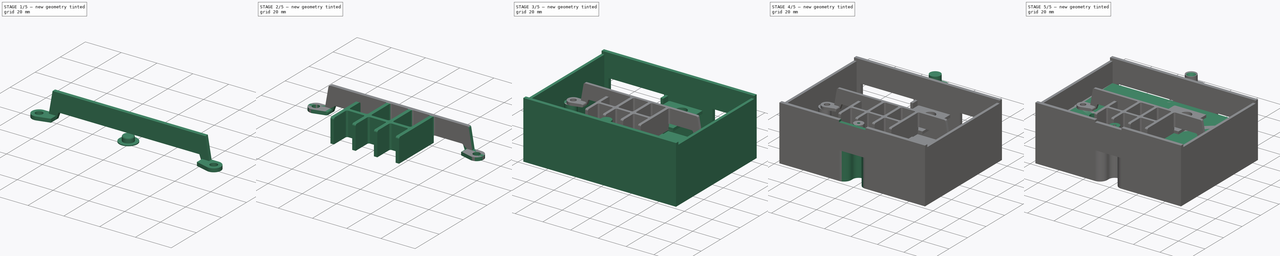
[diagram: build sequence overview — one tinted view per stage of 5, left to right]
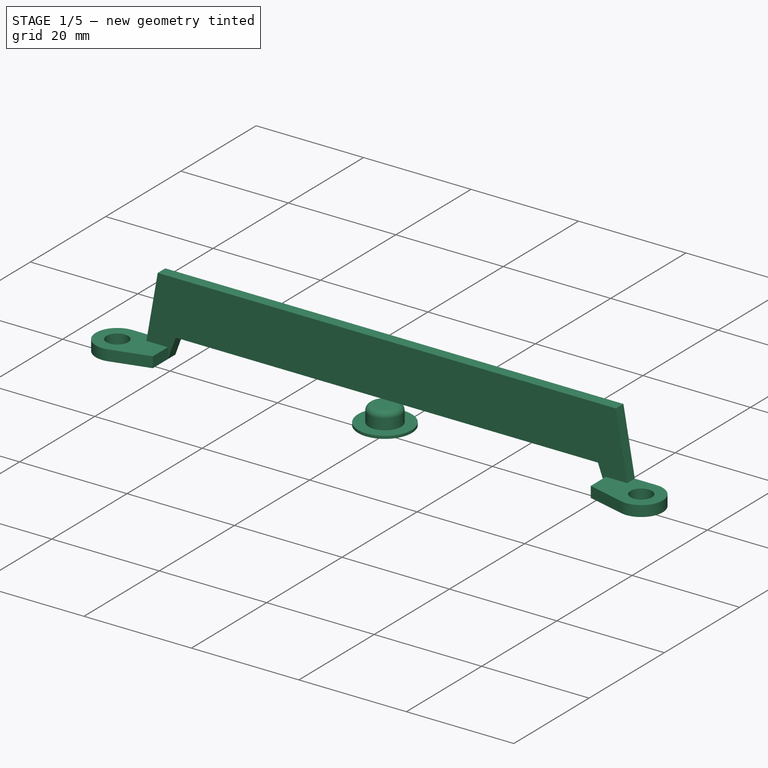
[diagram: stage 1 of 5 — iso view after this stage's code; geometry added in this stage tinted green]
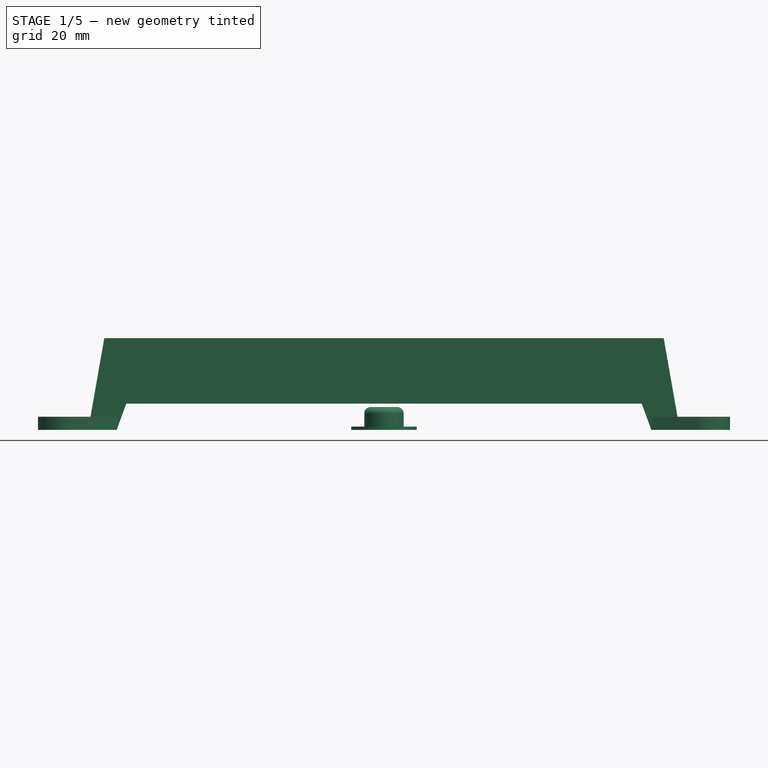
[diagram: stage 1 of 5 — front view after this stage's code; geometry added in this stage tinted green]
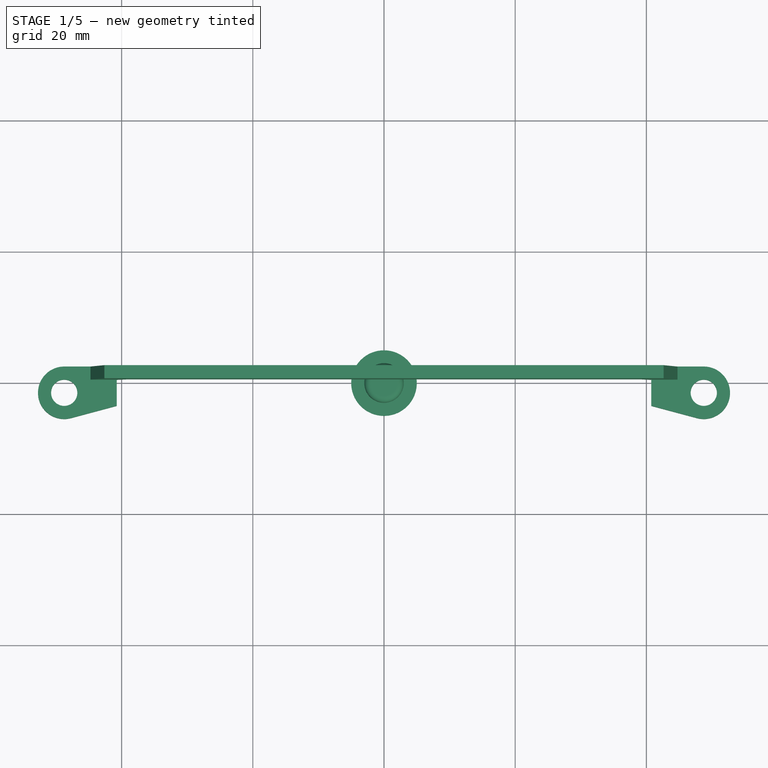
[diagram: stage 1 of 5 — top view after this stage's code; geometry added in this stage tinted green]
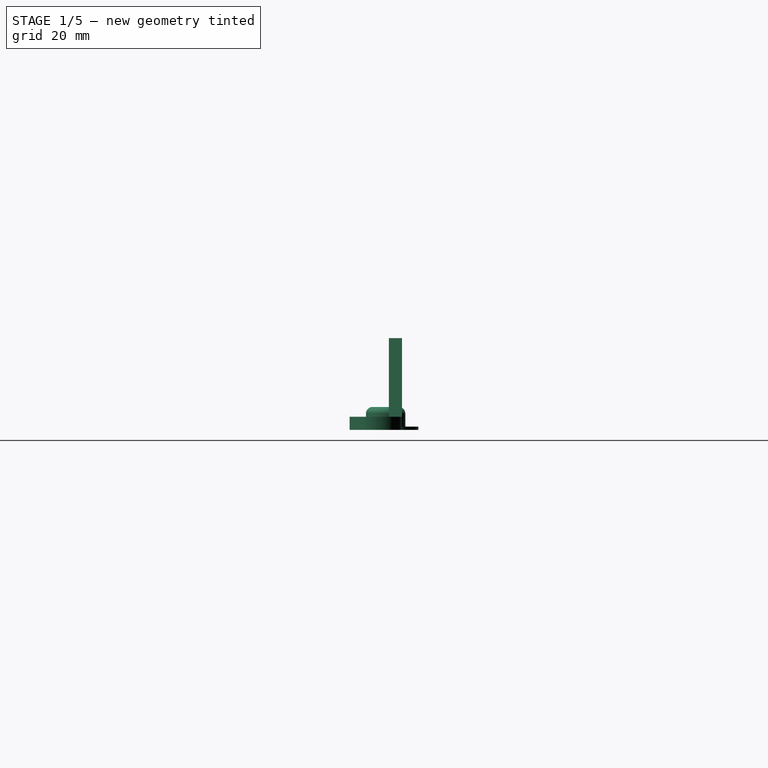
[diagram: stage 1 of 5 — right view after this stage's code; geometry added in this stage tinted green]
FCSTD DOCUMENT  (FreeCAD 1.1R20260325 (Git shallow))
Label: ac400board
License: All rights reserved
LicenseURL: https://en.wikipedia.org/wiki/All_rights_reserved
objects: Sketcher::SketchObject×26, PartDesign::Pad×15, PartDesign::Pocket×12, App::Point×6, PartDesign::Body×6, PartDesign::SubShapeBinder×5, PartDesign::Fillet×5, App::VarSet×1, Part::DatumPlane×1, Part::Feature×1, Part::MultiCommon×1
note: 161 computed .brp shape members not serialized (recipe doc carries the construction recipe); baked Part::Feature solids carry a one-line shape summary decoded from their .brp

FEATURE [PartDesign::Body] Body  label="cutout"
  AllowCompound = true
  Group = -> [Binder,Pad]
  Origin = -> Origin
  Tip = -> Pad
FEATURE [App::Point] Origin003
  Role = Origin
FEATURE [PartDesign::SubShapeBinder] Binder001
  BindCopyOnChange = 0
  BindMode = 0
  ClaimChildren = false
  Context = -> Body001 [Binder001.]
  Fuse = false
  MakeFace = true
  OffsetFill = false
  OffsetIntersection = false
  OffsetJoinType = 0
  OffsetOpenResult = false
  PartialLoad = false
  Refine = true
  Relative = true
  Support = -> [Sketch]
  _Version = 2
FEATURE [Sketcher::SketchObject] Sketch001
  ArcFitTolerance = 1e-06
  AttachmentSupport = -> [Origin002]
  ExternalGeometry = -> [Binder001]
  ExternalTypes = [1]
  FullyConstrained = true
  MakeInternals = false
  MapMode = 5
  _ExternalGeoVersion = 0
  expr: Constraints[119] = 4 mm - VarSet.thickness
  expr: Constraints[33] = VarSet.thickness
  expr: Constraints[34] = VarSet.thickness
  expr: Constraints[35] = VarSet.thickness
  expr: Constraints[36] = VarSet.thickness
  expr: Constraints[40] = VarSet.thickness
  sketch-geometry (41):
    g0: LineSegment [constr] StartX=-52.5 StartY=-28.48 StartZ=0 EndX=52.5 EndY=-28.48 EndZ=0
    g1: LineSegment [constr] StartX=-52.5 StartY=-15.78 StartZ=0 EndX=52.5 EndY=-15.78 EndZ=0
    g2: LineSegment [constr] StartX=-52.5 StartY=-6.25 StartZ=0 EndX=52.5 EndY=-6.25 EndZ=0
    g3: LineSegment [constr] StartX=-52.5 StartY=0.5 StartZ=0 EndX=52.5 EndY=0.5 EndZ=0
    g4: LineSegment [constr] StartX=-17.58 StartY=-6.25 StartZ=0 EndX=-17.58 EndY=-28.48 EndZ=0
    g5: LineSegment [constr] StartX=-4.87 StartY=0.5 StartZ=0 EndX=-4.87 EndY=-28.48 EndZ=0
    g6: LineSegment [constr] StartX=7.82 StartY=0.5 StartZ=0 EndX=7.82 EndY=-28.48 EndZ=0
    g7: LineSegment [constr] StartX=20.52 StartY=0.5 StartZ=0 EndX=20.52 EndY=-28.48 EndZ=0
    g8: LineSegment [constr] StartX=-6.87 StartY=0.5 StartZ=0 EndX=-6.87 EndY=-28.48 EndZ=0
    g9: LineSegment [constr] StartX=5.82 StartY=0.5 StartZ=0 EndX=5.82 EndY=-28.48 EndZ=0
    g10: LineSegment [constr] StartX=18.52 StartY=0.5 StartZ=0 EndX=18.52 EndY=-28.48 EndZ=0
    g11: LineSegment [constr] StartX=-52.5 StartY=-17.78 StartZ=0 EndX=52.5 EndY=-17.78 EndZ=0
    g12: LineSegment [constr] StartX=-19.58 StartY=-6.25 StartZ=0 EndX=-19.58 EndY=-28.48 EndZ=0
    g13: LineSegment StartX=-19.58 StartY=-6.25 StartZ=0 EndX=-19.58 EndY=-28.48 EndZ=0
    g14: LineSegment StartX=-19.58 StartY=-28.48 StartZ=0 EndX=-17.58 EndY=-28.48 EndZ=0
    g15: LineSegment StartX=-17.58 StartY=-28.48 StartZ=0 EndX=-17.58 EndY=-17.78 EndZ=0
    g16: LineSegment StartX=-17.58 StartY=-17.78 StartZ=0 EndX=-6.87 EndY=-17.78 EndZ=0
    g17: LineSegment StartX=-6.87 StartY=-17.78 StartZ=0 EndX=-6.87 EndY=-28.48 EndZ=0
    g18: LineSegment StartX=-6.87 StartY=-28.48 StartZ=0 EndX=-4.87 EndY=-28.48 EndZ=0
    g19: LineSegment StartX=-4.87 StartY=-28.48 StartZ=0 EndX=-4.87 EndY=-17.78 EndZ=0
    g20: LineSegment StartX=-4.87 StartY=-17.78 StartZ=0 EndX=5.82 EndY=-17.78 EndZ=0
    g21: LineSegment StartX=5.82 StartY=-17.78 StartZ=0 EndX=5.82 EndY=-28.48 EndZ=0
    g22: LineSegment StartX=5.82 StartY=-28.48 StartZ=0 EndX=7.82 EndY=-28.48 EndZ=0
    g23: LineSegment StartX=7.82 StartY=-28.48 StartZ=0 EndX=7.82 EndY=-17.78 EndZ=0
    g24: LineSegment StartX=7.82 StartY=-17.78 StartZ=0 EndX=18.52 EndY=-17.78 EndZ=0
    g25: LineSegment StartX=18.52 StartY=-17.78 StartZ=0 EndX=18.52 EndY=-28.48 EndZ=0
    g26: LineSegment StartX=18.52 StartY=-28.48 StartZ=0 EndX=20.52 EndY=-28.48 EndZ=0
    g27: LineSegment StartX=20.52 StartY=-28.48 StartZ=0 EndX=20.52 EndY=0.5 EndZ=0
    g28: LineSegment StartX=20.52 StartY=0.5 StartZ=0 EndX=18.52 EndY=0.5 EndZ=0
    g29: LineSegment StartX=18.52 StartY=0.5 StartZ=0 EndX=18.52 EndY=-15.78 EndZ=0
    g30: LineSegment StartX=18.52 StartY=-15.78 StartZ=0 EndX=7.82 EndY=-15.78 EndZ=0
    g31: LineSegment StartX=7.82 StartY=-15.78 StartZ=0 EndX=7.82 EndY=0.5 EndZ=0
    g32: LineSegment StartX=7.82 StartY=0.5 StartZ=0 EndX=5.82 EndY=0.5 EndZ=0
    g33: LineSegment StartX=5.82 StartY=0.5 StartZ=0 EndX=5.82 EndY=-15.78 EndZ=0
    g34: LineSegment StartX=5.82 StartY=-15.78 StartZ=0 EndX=-4.87 EndY=-15.78 EndZ=0
    g35: LineSegment StartX=-4.87 StartY=-15.78 StartZ=0 EndX=-4.87 EndY=0.5 EndZ=0
    g36: LineSegment StartX=-4.87 StartY=0.5 StartZ=0 EndX=-6.87 EndY=0.5 EndZ=0
    g37: LineSegment StartX=-6.87 StartY=0.5 StartZ=0 EndX=-6.87 EndY=-15.78 EndZ=0
    g38: LineSegment StartX=-6.87 StartY=-15.78 StartZ=0 EndX=-17.58 EndY=-15.78 EndZ=0
    g39: LineSegment StartX=-17.58 StartY=-15.78 StartZ=0 EndX=-17.58 EndY=-6.25 EndZ=0
    g40: LineSegment StartX=-17.58 StartY=-6.25 StartZ=0 EndX=-19.58 EndY=-6.25 EndZ=0
  constraints (120):
    c: Horizontal(g0)
    c: Distance(g0,g-7) = 9.52
    c: Horizontal(g1)
    c: Distance(g-7,g1) = 22.22
    c: Horizontal(g2)
    c: Distance(g2,g-7) = 31.75
    c: Horizontal(g3)
    c: PointOnObject(g4,g0)
    c: Vertical(g4)
    c: PointOnObject(g4,g2)
    c: Distance(g-6,g4) = 34.92
    c: PointOnObject(g5,g0)
    c: Vertical(g5)
    c: PointOnObject(g6,g0)
    c: Vertical(g6)
    c: PointOnObject(g7,g0)
    c: Vertical(g7)
    c: Distance(g-6,g5) = 47.63
    c: Distance(g-7,g6) = 60.32
    c: Distance(g-7,g7) = 73.02
    c: PointOnObject(g7,g3)
    c: PointOnObject(g6,g3)
    c: PointOnObject(g5,g3)
    c: PointOnObject(g8,g3)
    c: PointOnObject(g8,g0)
    c: Vertical(g8)
    c: PointOnObject(g9,g3)
    c: PointOnObject(g9,g0)
    c: Vertical(g9)
    c: PointOnObject(g10,g3)
    c: PointOnObject(g10,g0)
    c: Vertical(g10)
    c: Horizontal(g11)
    c: Distance(g11,g1) = 2
    c: Distance(g5,g8) = 2
    c: Distance(g6,g9) = 2
    c: Distance(g7,g10) = 2
    c: PointOnObject(g12,g2)
    c: PointOnObject(g12,g0)
    c: Vertical(g12)
    c: Distance(g4,g12) = 2
    c: Coincident(g12,g13)
    c: Coincident(g13,g12)
    c: Coincident(g13,g14)
    c: Coincident(g14,g4)
    c: Coincident(g14,g15)
    c: Coincident(g15,g16)
    c: PointOnObject(g16,g8)
    c: Coincident(g16,g17)
    c: Coincident(g17,g8)
    c: Coincident(g17,g18)
    c: Coincident(g18,g5)
    c: Coincident(g18,g19)
    c: PointOnObject(g19,g11)
    c: Vertical(g19)
    c: Coincident(g19,g20)
    c: PointOnObject(g20,g9)
    c: Horizontal(g20)
    c: Coincident(g20,g21)
    c: Coincident(g21,g9)
    c: Coincident(g21,g22)
    c: Coincident(g22,g6)
    c: Coincident(g22,g23)
    c: PointOnObject(g23,g11)
    c: Vertical(g23)
    c: Coincident(g23,g24)
    c: PointOnObject(g24,g11)
    c: Coincident(g24,g25)
    c: Coincident(g25,g10)
    c: Vertical(g25)
    c: Coincident(g25,g26)
    c: Coincident(g26,g7)
    c: Coincident(g26,g27)
    c: Coincident(g27,g28)
    c: Coincident(g28,g10)
    c: Coincident(g28,g29)
    c: PointOnObject(g29,g10)
    c: Coincident(g29,g30)
    c: Coincident(g30,g31)
    c: Vertical(g31)
    c: Coincident(g31,g32)
    c: Coincident(g32,g9)
    c: Coincident(g32,g33)
    c: PointOnObject(g33,g1)
    c: Vertical(g33)
    c: Coincident(g33,g34)
    c: PointOnObject(g34,g1)
    c: Coincident(g34,g35)
    c: Coincident(g35,g5)
    c: Vertical(g35)
    c: Coincident(g35,g36)
    c: Coincident(g36,g8)
    c: Coincident(g36,g37)
    c: PointOnObject(g37,g1)
    c: Vertical(g37)
    c: Coincident(g37,g38)
    c: PointOnObject(g38,g4)
    c: Horizontal(g38)
    c: Coincident(g38,g39)
    c: Coincident(g39,g4)
    c: Coincident(g39,g40)
    c: Coincident(g40,g12)
    c: Horizontal(g30)
    c: Horizontal(g16)
    c: PointOnObject(g16,g11)
    c: PointOnObject(g29,g1)
    c: Coincident(g31,g6)
    c: Vertical(g15)
    c: Coincident(g27,g7)
    c: PointOnObject(g0,g-6)
    c: PointOnObject(g11,g-6)
    c: PointOnObject(g1,g-6)
    c: PointOnObject(g2,g-6)
    c: PointOnObject(g3,g-6)
    c: PointOnObject(g3,g-3)
    c: PointOnObject(g2,g-3)
    c: PointOnObject(g1,g-3)
    c: PointOnObject(g11,g-3)
    c: PointOnObject(g0,g-3)
    c: Distance(g-14,g3) = 2
FEATURE [App::VarSet] VarSet
  bottomgap = 4
  height = 14
  holeSpacing = 97.5
  thickness = 2
FEATURE [Sketcher::SketchObject] Sketch002
  ArcFitTolerance = 1e-06
  AttachmentSupport = -> [XY_Plane001]
  ExternalGeometry = -> [Binder001]
  ExternalTypes = [0,0]
  FullyConstrained = false
  MakeInternals = false
  MapMode = 2
  _ExternalGeoVersion = 0
  expr: Constraints[19] = VarSet.holeSpacing
  sketch-geometry (14):
    g0: ArcOfCircle CenterX=-48.75 CenterY=-1.5 CenterZ=0 NormalX=0 NormalY=0 NormalZ=1 AngleXU=0 Radius=4 StartAngle=1.5708 EndAngle=4.97385
    g1: LineSegment StartX=-48.75 StartY=2.5 StartZ=0 EndX=-40.75 EndY=2.5 EndZ=0
    g2: LineSegment StartX=-40.75 StartY=2.5 StartZ=0 EndX=-40.75 EndY=-3.5 EndZ=0
    g3: LineSegment StartX=-40.75 StartY=-3.5 StartZ=0 EndX=-47.716 EndY=-5.36405 EndZ=0
    g4: GeomPoint X=-42.75 Y=-1.5 Z=0
    g5: LineSegment [constr] StartX=-59.6406 StartY=-1.5 StartZ=0 EndX=65.9854 EndY=-1.5 EndZ=0
    g6: ArcOfCircle CenterX=48.75 CenterY=-1.5 CenterZ=0 NormalX=0 NormalY=0 NormalZ=1 AngleXU=0 Radius=4 StartAngle=4.45092 EndAngle=7.85398
    g7: LineSegment StartX=48.75 StartY=2.5 StartZ=0 EndX=40.75 EndY=2.5 EndZ=0
    g8: LineSegment StartX=40.75 StartY=2.5 StartZ=0 EndX=40.75 EndY=-3.5 EndZ=0
    g9: LineSegment StartX=40.75 StartY=-3.5 StartZ=0 EndX=47.716 EndY=-5.36405 EndZ=0
    g10: GeomPoint X=42.1141 Y=-1.87122 Z=0
    g11: Circle [constr] CenterX=48.75 CenterY=-1.5 CenterZ=0 NormalX=0 NormalY=0 NormalZ=1 AngleXU=0 Radius=2
    g12: Circle CenterX=-48.75 CenterY=-1.5 CenterZ=0 NormalX=0 NormalY=0 NormalZ=1 AngleXU=0 Radius=2
    g13: Circle CenterX=48.75 CenterY=-1.5 CenterZ=0 NormalX=0 NormalY=0 NormalZ=1 AngleXU=0 Radius=2
  constraints (30):
    c: Coincident(g1,g2)
    c: Vertical(g2)
    c: Coincident(g2,g3)
    c: Horizontal(g0,g4)
    c: Tangent(g3,g0) = 1.5708
    c: DistanceX(g0,g4) = 6
    c: Tangent(g0,g1) = 1.5708
    c: Horizontal(g5)
    c: PointOnObject(g0,g5)
    c: Radius(g6) = 4
    c: Coincident(g7,g8)
    c: Vertical(g8)
    c: Tangent(g9,g6) = -1.5708
    c: Tangent(g6,g7) = -1.5708
    c: Diameter(g12) = 4
    c: Coincident(g12,g0)
    c: Diameter(g13) = 4
    c: Coincident(g13,g6)
    c: Tangent(g13,g11)
    c: DistanceX(g0,g11) = 97.5
    c: Symmetric(g0,g11,g-2)
    c: Radius(g0) = 4
    c: Horizontal(g1)
    c: PointOnObject(g-3,g5)
    c: Distance(g2,g5) = 2
    c: Horizontal(g7)
    c: Coincident(g9,g8)
    c: Horizontal(g2,g8)
    c: Distance(g0,g2) = 8
    c: Distance(g11,g8) = 8
FEATURE [PartDesign::Pad] Pad001
  Direction = (0,0,1)
  Length = 2
  Length2 = 10
  Profile = -> Sketch002
  ReferenceAxis = -> Sketch002 [N_Axis]
  Refine = true
  SideType = 0
  Suppressed = false
  Type = 0
  Type2 = 0
  expr: Length = VarSet.thickness
FEATURE [Part::DatumPlane] DatumPlane
  AttachmentOffset = pos=(0,0,0) rot=(0,1,0;1.5708rad)
  AttachmentSupport = -> [Pad001]
  MapMode = 45
  Placement = pos=(0,2.5,0) rot=(0,0.707107,0.707107;3.14159rad)
FEATURE [Sketcher::SketchObject] Sketch004
  ArcFitTolerance = 1e-06
  AttachmentSupport = -> [DatumPlane]
  ExternalTypes = [1,1]
  FullyConstrained = true
  MakeInternals = false
  MapMode = 5
  Placement = pos=(0,2.5,0) rot=(0,0.707107,0.707107;3.14159rad)
  _ExternalGeoVersion = 0
  expr: Constraints[17] = VarSet.bottomgap
  expr: Constraints[18] = 2 * VarSet.thickness
  expr: Constraints[24] = VarSet.holeSpacing - 8 mm
  expr: Constraints[27] = VarSet.thickness
  expr: Constraints[28] = VarSet.height
  sketch-geometry (10):
    g0: LineSegment StartX=-44.75 StartY=2 StartZ=0 EndX=-42.6341 EndY=14 EndZ=0
    g1: LineSegment StartX=-42.6341 StartY=14 StartZ=0 EndX=42.6341 EndY=14 EndZ=0
    g2: LineSegment StartX=42.6341 StartY=14 StartZ=0 EndX=44.75 EndY=2 EndZ=0
    g3: LineSegment StartX=44.75 StartY=0 StartZ=0 EndX=40.75 EndY=0 EndZ=0
    g4: LineSegment StartX=40.75 StartY=0 StartZ=0 EndX=39.2941 EndY=4 EndZ=0
    g5: LineSegment StartX=39.2941 StartY=4 StartZ=0 EndX=-39.2941 EndY=4 EndZ=0
    g6: LineSegment StartX=-39.2941 StartY=4 StartZ=0 EndX=-40.75 EndY=-2e-16 EndZ=0
    g7: LineSegment StartX=-40.75 StartY=0 StartZ=0 EndX=-44.75 EndY=0 EndZ=0
    g8: LineSegment StartX=44.75 StartY=2 StartZ=0 EndX=44.75 EndY=0 EndZ=0
    g9: LineSegment StartX=-44.75 StartY=2 StartZ=0 EndX=-44.75 EndY=0 EndZ=0
  constraints (29):
    c: Coincident(g0,g1)
    c: Horizontal(g1)
    c: Coincident(g1,g2)
    c: Horizontal(g3)
    c: Coincident(g3,g4)
    c: Coincident(g4,g5)
    c: Horizontal(g5)
    c: Coincident(g5,g6)
    c: Coincident(g6,g7)
    c: Equal(g7,g3)
    c: Horizontal(g7)
    c: Equal(g6,g4)
    c: Equal(g0,g2)
    c: Angle(g1,g0) = 1.39626
    c: Angle(g5,g6) = 1.22173
    c: Coincident(g8,g3)
    c: Vertical(g8)
    c: DistanceY(g3,g4) = 4
    c: DistanceX(g3,g3) = 4
    c: Vertical(g0,g7)
    c: Coincident(g9,g0)
    c: Coincident(g9,g7)
    c: Coincident(g2,g8)
    c: Angle(g2,g1) = 1.39626
    c: DistanceX(g7,g3) = 89.5
    c: Symmetric(g7,g3,g-2)
    c: PointOnObject(g3,g-1)
    c: DistanceY(g8,g8) = 2
    c: Distance(g3,g1) = 14
FEATURE [PartDesign::Pad] Pad003
  BaseFeature = -> Pad001
  Direction = (-9.12465e-09,1,-2e-16)
  Length = 2
  Length2 = 10
  Profile = -> Sketch004
  ReferenceAxis = -> Sketch004 [N_Axis]
  Refine = true
  Reversed = true
  SideType = 0
  Suppressed = false
  Type = 0
  Type2 = 0
  expr: Length = VarSet.thickness
FEATURE [App::Point] Origin011  label="Origin014"
  Role = Origin
FEATURE [Sketcher::SketchObject] Sketch026
  ArcFitTolerance = 1e-06
  AttachmentSupport = -> [Origin010]
  ExternalTypes = [0]
  FullyConstrained = true
  MakeInternals = true
  MapMode = 5
  _ExternalGeoVersion = 1
  sketch-geometry (1):
    g0: Circle CenterX=0 CenterY=0 CenterZ=0 NormalX=0 NormalY=0 NormalZ=1 AngleXU=0 Radius=5
  constraints (2):
    c: Diameter(g0) = 10
    c: Coincident(g0,g-1)
FEATURE [PartDesign::Pad] Pad015
  Direction = (0,0,1)
  Length = 0.5
  Length2 = 10
  Profile = -> Sketch026
  ReferenceAxis = -> Sketch026 [N_Axis]
  Refine = true
  SideType = 0
  Suppressed = false
  Type = 0
  Type2 = 0
FEATURE [Sketcher::SketchObject] Sketch027
  ArcFitTolerance = 1e-06
  AttachmentSupport = -> [Pad015]
  ExternalTypes = [0]
  FullyConstrained = true
  MakeInternals = true
  MapMode = 5
  Placement = pos=(0,0,0.5) rot=(0,0,1;0rad)
  _ExternalGeoVersion = 1
  sketch-geometry (1):
    g0: Circle CenterX=0 CenterY=0 CenterZ=0 NormalX=0 NormalY=0 NormalZ=1 AngleXU=0 Radius=3
  constraints (2):
    c: Diameter(g0) = 6
    c: Coincident(g0,g-1)
FEATURE [PartDesign::Pad] Pad016
  BaseFeature = -> Pad015
  Direction = (0,0,1)
  Length = 3
  Length2 = 10
  Profile = -> Sketch027
  ReferenceAxis = -> Sketch027 [N_Axis]
  Refine = true
  SideType = 0
  Suppressed = false
  Type = 0
  Type2 = 0
FEATURE [PartDesign::Fillet] Fillet003
  Base = -> Pad016 [Face5]
  BaseFeature = -> Pad016
  Radius = 1
  Refine = true
  SupportTransform = false
  Suppressed = false
  UseAllEdges = false
FEATURE [Sketcher::SketchObject] Sketch028
  ArcFitTolerance = 1e-06
  AttachmentSupport = -> [Origin010]
  ExternalTypes = [0]
  FullyConstrained = true
  MakeInternals = true
  MapMode = 5
  _ExternalGeoVersion = 1
  sketch-geometry (1):
    g0: Circle CenterX=0 CenterY=0 CenterZ=0 NormalX=0 NormalY=0 NormalZ=1 AngleXU=0 Radius=2.5
  constraints (2):
    c: Diameter(g0) = 5
    c: Coincident(g0,g-1)
FEATURE [PartDesign::Pocket] Pocket011
  BaseFeature = -> Fillet003
  Direction = (0,0,-1)
  Length = 1
  Length2 = 5
  Profile = -> Sketch028
  ReferenceAxis = -> Sketch028 [N_Axis]
  Refine = true
  Reversed = true
  SideType = 0
  Suppressed = false
  Type = 0
  Type2 = 0
FEATURE [PartDesign::Fillet] Fillet004
  Base = -> Pocket011 [Face8]
  BaseFeature = -> Pocket011
  Radius = 0.6
  Refine = true
  SupportTransform = false
  Suppressed = false
  UseAllEdges = false
FEATURE [PartDesign::Body] Body005  label="button"
  AllowCompound = true
  Group = -> [Sketch026,Pad015,Sketch027,Pad016,Fillet003,Sketch028,Pocket011,Fillet004]
  Origin = -> Origin010
  Tip = -> Fillet004
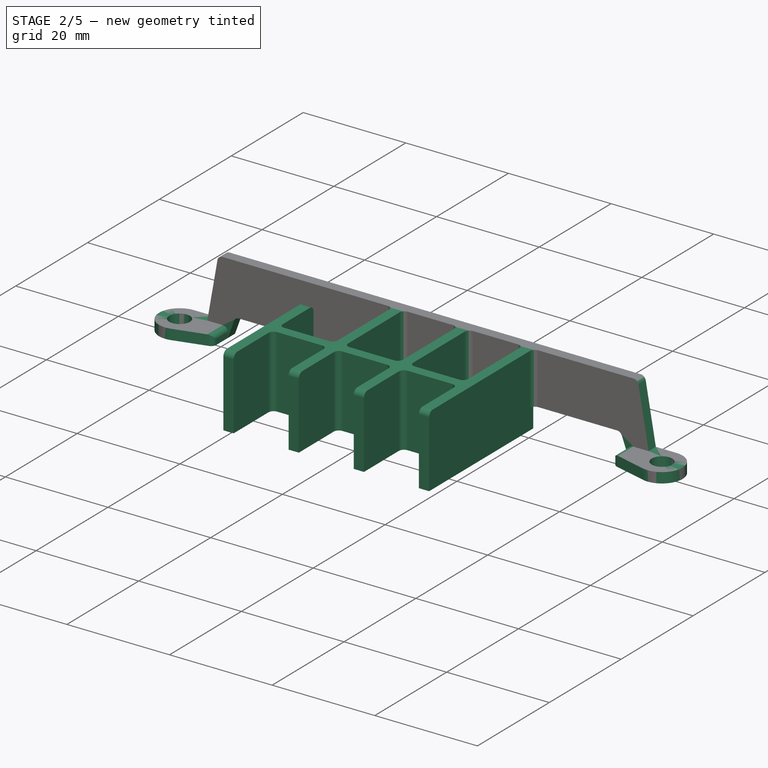
[diagram: stage 2 of 5 — iso view after this stage's code; geometry added in this stage tinted green]
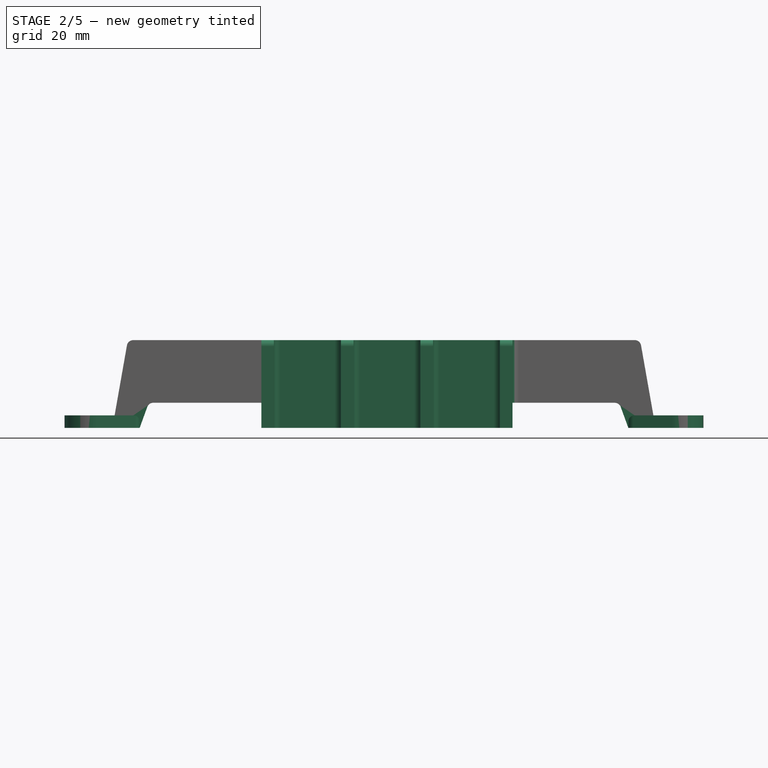
[diagram: stage 2 of 5 — front view after this stage's code; geometry added in this stage tinted green]
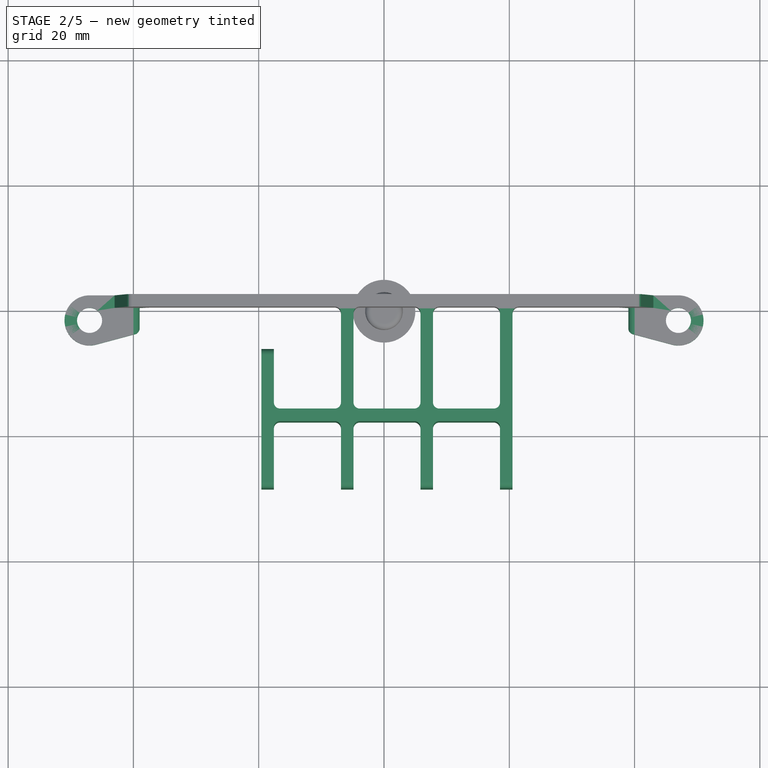
[diagram: stage 2 of 5 — top view after this stage's code; geometry added in this stage tinted green]
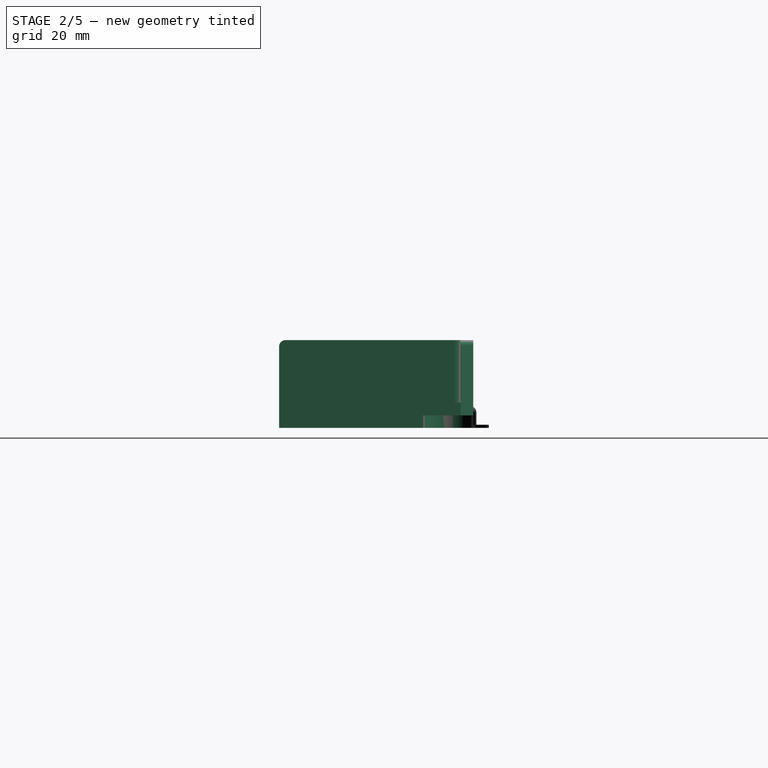
[diagram: stage 2 of 5 — right view after this stage's code; geometry added in this stage tinted green]
FEATURE [PartDesign::Pad] Pad004
  BaseFeature = -> Pad003
  Direction = (0,0,1)
  Length = 14
  Length2 = 10
  Profile = -> Sketch001
  ReferenceAxis = -> Sketch001 [N_Axis]
  Refine = true
  SideType = 0
  Suppressed = false
  Type = 0
  Type2 = 0
  expr: Length = VarSet.height
FEATURE [PartDesign::Fillet] Fillet
  Base = -> Pad004 [Edge32,Edge38,Edge51,Edge29]
  BaseFeature = -> Pad004
  Radius = 1
  Refine = true
  SupportTransform = false
  Suppressed = false
  UseAllEdges = false
FEATURE [PartDesign::Fillet] Fillet001
  Base = -> Fillet [Edge95,Edge140,Edge131,Edge115,Edge117,Edge101,Edge135,Edge126,Edge81,Edge97,Edge113,Edge119,Edge129,Edge138,Edge91,Edge84,Edge136,Edge127,Edge36,Edge32,Edge43,Edge35,Edge27]
  BaseFeature = -> Fillet
  Radius = 1
  Refine = true
  SupportTransform = false
  Suppressed = false
  UseAllEdges = false
FEATURE [PartDesign::Body] Body003  label="switch-stabilizer"
  AllowCompound = true
  Group = -> [Sketch025,Pad013]
  Origin = -> Origin006
  Tip = -> Pad013
FEATURE [App::Point] Origin009  label="Origin011"
  Role = Origin
FEATURE [PartDesign::SubShapeBinder] Binder004
  BindCopyOnChange = 0
  BindMode = 0
  ClaimChildren = false
  Context = -> Body004 [Binder004.]
  Fuse = false
  MakeFace = true
  OffsetFill = false
  OffsetIntersection = false
  OffsetJoinType = 0
  OffsetOpenResult = false
  PartialLoad = false
  Refine = true
  Relative = true
  Support = -> [Sketch[Edge3,Edge2,Edge1,Edge8,Edge7,Edge6,Edge5,Edge4]]
  _Version = 2
FEATURE [PartDesign::Pad] Pad014
  Direction = (0,0,1)
  Length = 14
  Length2 = 10
  Profile = -> Binder004
  Refine = true
  SideType = 0
  Suppressed = false
  Type = 0
  Type2 = 0
  expr: Length = VarSet.height
FEATURE [PartDesign::Body] Body004  label="boundary"
  AllowCompound = true
  Group = -> [Binder004,Pad014]
  Origin = -> Origin008
  Tip = -> Pad014
FEATURE [PartDesign::Fillet] Fillet002
  Base = -> Fillet001 [?Edge207,?Edge201,?Edge224,?Edge229]
  BaseFeature = -> Fillet001
  Radius = 1
  Refine = true
  SupportTransform = false
  Suppressed = false
  UseAllEdges = false
FEATURE [PartDesign::Body] Body001  label="divider-base"
  AllowCompound = true
  Group = -> [Binder001,Sketch001,Sketch002,DatumPlane,Pad001,Sketch004,Pad003,Pad004,Fillet,Fillet001,Fillet002]
  Origin = -> Origin002
  Tip = -> Fillet002
FEATURE [Part::MultiCommon] Common  label="divider"
  Behavior = 0
  Refine = true
  Shapes = -> [Body001,Body004]
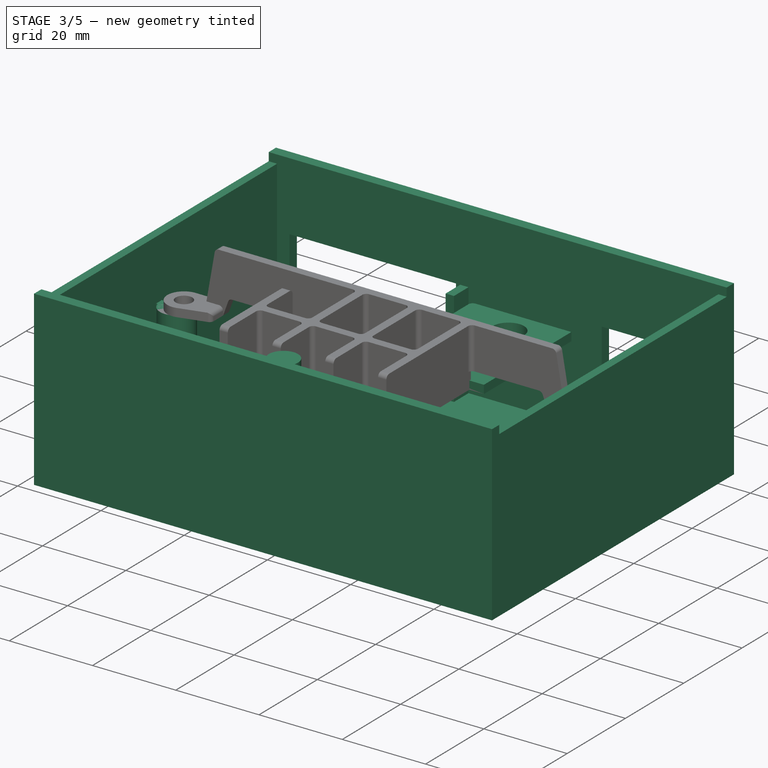
[diagram: stage 3 of 5 — iso view after this stage's code; geometry added in this stage tinted green]
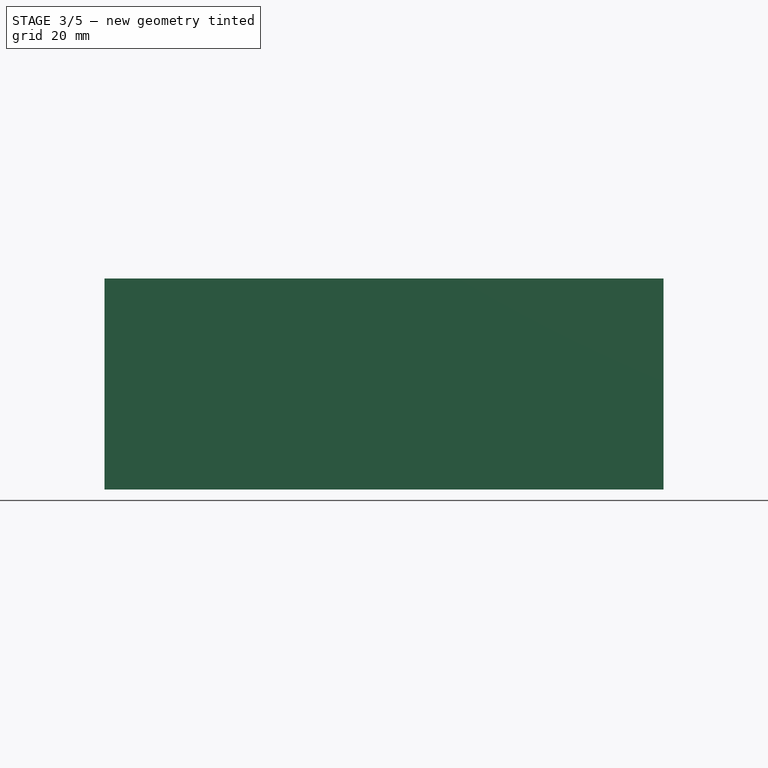
[diagram: stage 3 of 5 — front view after this stage's code; geometry added in this stage tinted green]
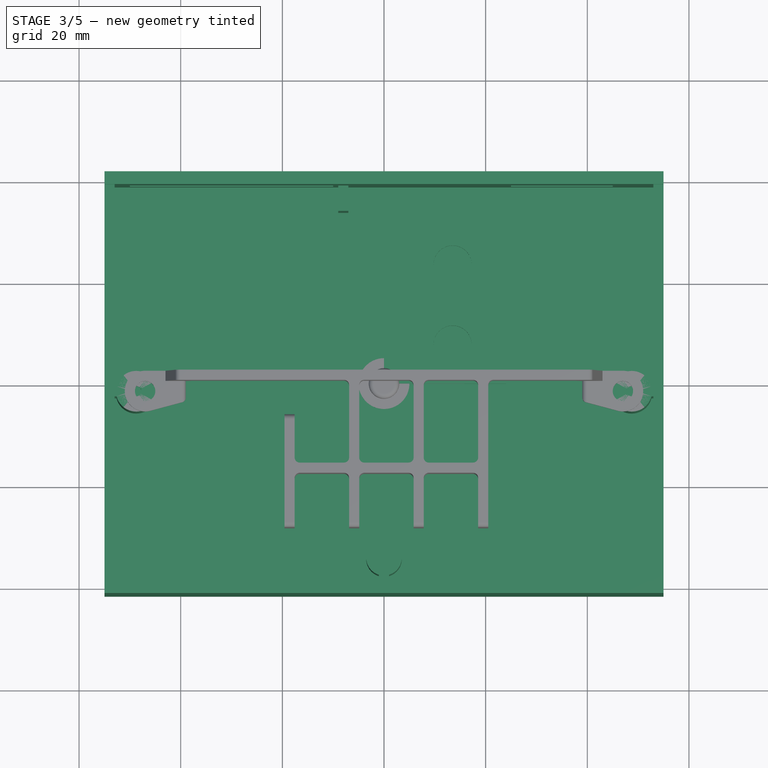
[diagram: stage 3 of 5 — top view after this stage's code; geometry added in this stage tinted green]
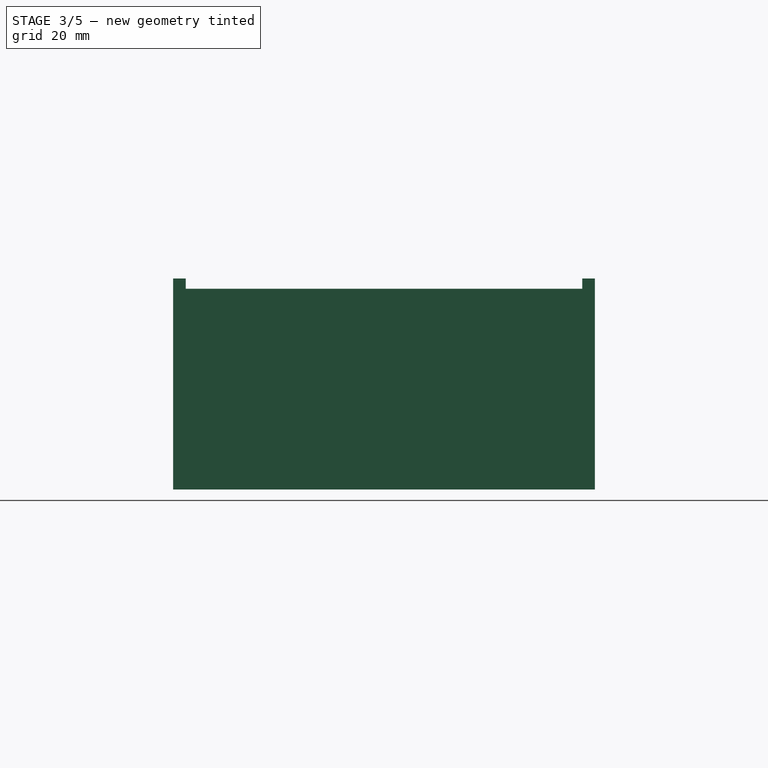
[diagram: stage 3 of 5 — right view after this stage's code; geometry added in this stage tinted green]
FEATURE [Sketcher::SketchObject] Sketch005  label="box-landmarks"
  ArcFitTolerance = 1e-06
  AttachmentSupport = -> [XY_Plane002]
  ExternalTypes = [0]
  FullyConstrained = true
  MakeInternals = false
  MapMode = 5
  _ExternalGeoVersion = 0
  expr: Constraints[15] = 3.25 * 25.4
  sketch-geometry (6):
    g0: LineSegment StartX=-55 StartY=41.5 StartZ=0 EndX=-55 EndY=-41.5 EndZ=0
    g1: LineSegment StartX=-55 StartY=-41.5 StartZ=0 EndX=55 EndY=-41.5 EndZ=0
    g2: LineSegment StartX=55 StartY=-41.5 StartZ=0 EndX=55 EndY=41.5 EndZ=0
    g3: LineSegment StartX=55 StartY=41.5 StartZ=0 EndX=-55 EndY=41.5 EndZ=0
    g4: Circle CenterX=0 CenterY=-34.5 CenterZ=0 NormalX=0 NormalY=0 NormalZ=1 AngleXU=0 Radius=1
    g5: Circle CenterX=0 CenterY=48.05 CenterZ=0 NormalX=0 NormalY=0 NormalZ=1 AngleXU=0 Radius=1
  constraints (17):
    c: Coincident(g0,g1)
    c: Coincident(g1,g2)
    c: Coincident(g2,g3)
    c: Coincident(g3,g0)
    c: Vertical(g0)
    c: Vertical(g2)
    c: Horizontal(g1)
    c: Horizontal(g3)
    c: Distance(g0,g2) = 110
    c: Distance(g1,g3) = 83
    c: Symmetric(g0,g1,g-1)
    c: Diameter(g4) = 2
    c: Diameter(g5) = 2
    c: PointOnObject(g5,g-2)
    c: PointOnObject(g4,g-2)
    c: Distance(g4,g5) = 82.55
    c: Distance(g4,g1) = 7
FEATURE [App::Point] Origin005  label="Origin006"
  Role = Origin
FEATURE [PartDesign::SubShapeBinder] Binder002
  BindCopyOnChange = 0
  BindMode = 0
  ClaimChildren = false
  Context = -> Body002 [Pad005.Binder002.]
  Fuse = false
  MakeFace = true
  OffsetFill = false
  OffsetIntersection = false
  OffsetJoinType = 0
  OffsetOpenResult = false
  PartialLoad = false
  Refine = true
  Relative = true
  Support = -> [Sketch005[Edge2,Edge1,Edge4,Edge3]]
  _Version = 2
FEATURE [PartDesign::Pad] Pad005
  Direction = (0,0,1)
  Length = 25
  Length2 = 10
  Profile = -> Binder002
  Refine = true
  Reversed = true
  SideType = 0
  Suppressed = false
  Type = 0
  Type2 = 0
FEATURE [PartDesign::SubShapeBinder] Binder003
  BindCopyOnChange = 0
  BindMode = 0
  ClaimChildren = false
  Context = -> Body002 [Binder003.]
  Fuse = false
  MakeFace = true
  OffsetFill = false
  OffsetIntersection = false
  OffsetJoinType = 0
  OffsetOpenResult = false
  PartialLoad = false
  Refine = true
  Relative = true
  Support = -> [Sketch]
  _Version = 2
FEATURE [Sketcher::SketchObject] Sketch007
  ArcFitTolerance = 1e-06
  AttachmentSupport = -> [Origin004]
  ExternalGeometry = -> [Binder003,Sketch005]
  ExternalTypes = [0,0,0,0,0]
  FullyConstrained = true
  MakeInternals = false
  MapMode = 5
  _ExternalGeoVersion = 0
  sketch-geometry (34):
    g0: ArcOfCircle CenterX=-48.75 CenterY=-1.5 CenterZ=0 NormalX=0 NormalY=0 NormalZ=1 AngleXU=0 Radius=4 StartAngle=3.39427 EndAngle=9.1721
    g1: ArcOfCircle CenterX=48.75 CenterY=-1.5 CenterZ=0 NormalX=0 NormalY=0 NormalZ=1 AngleXU=0 Radius=4 StartAngle=0.25268 EndAngle=6.03051
    g2: LineSegment StartX=53 StartY=-39 StartZ=0 EndX=53 EndY=-2.5 EndZ=0
    g3: LineSegment StartX=53 StartY=39 StartZ=0 EndX=-7 EndY=39 EndZ=0
    g4: LineSegment StartX=-53 StartY=-2.5 StartZ=0 EndX=-53 EndY=-39 EndZ=0
    g5: LineSegment StartX=-53 StartY=-39 StartZ=0 EndX=-30 EndY=-39 EndZ=0
    g6: GeomPoint [constr] X=0 Y=0 Z=0
    g7: ArcOfCircle CenterX=0 CenterY=-34.5 CenterZ=0 NormalX=0 NormalY=0 NormalZ=1 AngleXU=0 Radius=7 StartAngle=-9e-16 EndAngle=3.14159
    g8: LineSegment StartX=-7 StartY=-34.5 StartZ=0 EndX=-7 EndY=-36 EndZ=0
    g9: LineSegment StartX=7 StartY=-34.5 StartZ=0 EndX=7 EndY=-36 EndZ=0
    g10: LineSegment StartX=10 StartY=-39 StartZ=0 EndX=28 EndY=-39 EndZ=0
    g11: ArcOfCircle CenterX=-10 CenterY=-36 CenterZ=0 NormalX=0 NormalY=0 NormalZ=1 AngleXU=0 Radius=3 StartAngle=4.71239 EndAngle=6.28319
    g12: GeomPoint [constr] X=-7 Y=-39 Z=0
    g13: ArcOfCircle CenterX=10 CenterY=-36 CenterZ=0 NormalX=0 NormalY=0 NormalZ=1 AngleXU=0 Radius=3 StartAngle=3.14159 EndAngle=4.71239
    g14: GeomPoint [constr] X=7 Y=-39 Z=0
    g15: LineSegment StartX=-53 StartY=-2.5 StartZ=0 EndX=-52.623 EndY=-2.5 EndZ=0
    g16: LineSegment StartX=-52.623 StartY=-0.5 StartZ=0 EndX=-53 EndY=-0.5 EndZ=0
    g17: LineSegment [constr] StartX=-48.75 StartY=-1.5 StartZ=0 EndX=-53 EndY=-1.5 EndZ=0
    g18: LineSegment StartX=52.623 StartY=-2.5 StartZ=0 EndX=53 EndY=-2.5 EndZ=0
    g19: LineSegment StartX=53 StartY=-0.5 StartZ=0 EndX=52.623 EndY=-0.5 EndZ=0
    g20: LineSegment StartX=53 StartY=39 StartZ=0 EndX=53 EndY=-0.5 EndZ=0
    g21: LineSegment StartX=-53 StartY=39 StartZ=0 EndX=-53 EndY=-0.5 EndZ=0
    g22: LineSegment StartX=-9 StartY=39 StartZ=0 EndX=-9 EndY=34 EndZ=0
    g23: LineSegment StartX=-9 StartY=34 StartZ=0 EndX=-7 EndY=34 EndZ=0
    g24: LineSegment StartX=-7 StartY=34 StartZ=0 EndX=-7 EndY=39 EndZ=0
    g25: LineSegment StartX=-9 StartY=39 StartZ=0 EndX=-53 EndY=39 EndZ=0
    g26: LineSegment StartX=-28 StartY=-39 StartZ=0 EndX=-28 EndY=-34 EndZ=0
    g27: LineSegment StartX=-28 StartY=-34 StartZ=0 EndX=-30 EndY=-34 EndZ=0
    g28: LineSegment StartX=-30 StartY=-34 StartZ=0 EndX=-30 EndY=-39 EndZ=0
    g29: LineSegment StartX=30 StartY=-39 StartZ=0 EndX=30 EndY=-34 EndZ=0
    g30: LineSegment StartX=30 StartY=-34 StartZ=0 EndX=28 EndY=-34 EndZ=0
    g31: LineSegment StartX=28 StartY=-34 StartZ=0 EndX=28 EndY=-39 EndZ=0
    g32: LineSegment StartX=-28 StartY=-39 StartZ=0 EndX=-10 EndY=-39 EndZ=0
    g33: LineSegment StartX=30 StartY=-39 StartZ=0 EndX=53 EndY=-39 EndZ=0
  constraints (84):
    c: Coincident(g0,g-14)
    c: Coincident(g1,g-15)
    c: Coincident(g4,g5)
    c: Coincident(g33,g2)
    c: Coincident(g6,g-1)
    c: DistanceX(g25,g3) = 106
    c: Radius(g7) = 7
    c: Coincident(g7,g-22)
    c: Horizontal(g7,g7)
    c: Coincident(g8,g7)
    c: Vertical(g8)
    c: Vertical(g9)
    c: PointOnObject(g12,g8)
    c: Tangent(g32,g11) = -1.5708
    c: Tangent(g8,g11) = 1.5708
    c: PointOnObject(g14,g9)
    c: Tangent(g9,g13) = -1.5708
    c: Tangent(g10,g13) = -1.5708
    c: Tangent(g9,g7) = 1.5708
    c: Radius(g13) = 3
    c: Equal(g13,g11)
    c: Horizontal(g15)
    c: Distance(g15,g16) = 2
    c: Coincident(g17,g0)
    c: Horizontal(g17)
    c: Diameter(g0) = 8
    c: Coincident(g15,g0)
    c: Horizontal(g16)
    c: Coincident(g0,g16)
    c: Diameter(g1) = 8
    c: Coincident(g18,g1)
    c: Coincident(g19,g1)
    c: Tangent(g16,g19)
    c: Tangent(g18,g15)
    c: Vertical(g2)
    c: Coincident(g18,g2)
    c: Coincident(g20,g3)
    c: Coincident(g20,g19)
    c: Tangent(g20,g2)
    c: DistanceY(g2,g3) = 78
    c: Symmetric(g15,g16,g17)
    c: Vertical(g4)
    c: Coincident(g4,g15)
    c: Coincident(g21,g25)
    c: Coincident(g21,g16)
    c: Tangent(g21,g4)
    c: Symmetric(g25,g2,g6)
    c: Coincident(g22,g23)
    c: Coincident(g23,g24)
    c: Vertical(g22)
    c: Vertical(g24)
    c: Horizontal(g23)
    c: Distance(g22,g24) = 2
    c: Distance(g23,g22) = 5
    c: Distance(g24,g-2) = 7
    c: Horizontal(g3)
    c: Coincident(g22,g25)
    c: Coincident(g3,g24)
    c: Tangent(g3,g25)
    c: Coincident(g26,g27)
    c: Coincident(g27,g28)
    c: Horizontal(g27)
    c: Vertical(g26)
    c: Vertical(g28)
    c: Distance(g26,g28) = 2
    c: Distance(g28,g27) = 5
    c: Coincident(g29,g30)
    c: Coincident(g30,g31)
    c: Horizontal(g30)
    c: Vertical(g29)
    c: Vertical(g31)
    c: Distance(g29,g31) = 2
    c: Distance(g31,g30) = 5
    c: Symmetric(g31,g26,g-2)
    c: DistanceX(g28,g29) = 60
    c: PointOnObject(g12,g32)
    c: Coincident(g28,g5)
    c: Coincident(g32,g26)
    c: PointOnObject(g14,g10)
    c: Coincident(g29,g33)
    c: Coincident(g31,g10)
    c: Tangent(g5,g10)
    c: Tangent(g5,g33)
    c: Tangent(g32,g10)
FEATURE [PartDesign::Pocket] Pocket001
  BaseFeature = -> Pad005
  Direction = (0,0,-1)
  Length = 23
  Length2 = 5
  Profile = -> Sketch007
  ReferenceAxis = -> Sketch007 [N_Axis]
  Refine = true
  SideType = 0
  Suppressed = false
  Type = 0
  Type2 = 0
FEATURE [Sketcher::SketchObject] Sketch008
  ArcFitTolerance = 1e-06
  AttachmentSupport = -> [Pocket001]
  ExternalGeometry = -> [Binder003,Sketch005,Pocket001]
  ExternalTypes = [0,0,0,0,0,0,0,0]
  FullyConstrained = true
  MakeInternals = false
  MapMode = 5
  _ExternalGeoVersion = 0
  sketch-geometry (12):
    g0: Circle CenterX=-48.75 CenterY=-1.5 CenterZ=0 NormalX=0 NormalY=0 NormalZ=1 AngleXU=0 Radius=1
    g1: Circle CenterX=48.75 CenterY=-1.5 CenterZ=0 NormalX=0 NormalY=0 NormalZ=1 AngleXU=0 Radius=1
    g2: ArcOfCircle CenterX=0 CenterY=-34.5 CenterZ=0 NormalX=0 NormalY=0 NormalZ=1 AngleXU=0 Radius=3.5 StartAngle=5.00214 EndAngle=7.56423
    g3: LineSegment StartX=-10 StartY=-39 StartZ=0 EndX=-1 EndY=-39 EndZ=0
    g4: LineSegment StartX=-1 StartY=-37.8541 StartZ=0 EndX=-1 EndY=-39 EndZ=0
    g5: LineSegment StartX=1 StartY=-39 StartZ=0 EndX=1 EndY=-37.8541 EndZ=0
    g6: LineSegment StartX=1 StartY=-39 StartZ=0 EndX=10 EndY=-39 EndZ=0
    g7: LineSegment StartX=-1 StartY=-31.1459 StartZ=0 EndX=-1 EndY=-27.5718 EndZ=0
    g8: LineSegment StartX=1 StartY=-31.1459 StartZ=0 EndX=1 EndY=-27.5718 EndZ=0
    g9: ArcOfCircle CenterX=0 CenterY=-34.5 CenterZ=0 NormalX=0 NormalY=0 NormalZ=1 AngleXU=0 Radius=3.5 StartAngle=1.86055 EndAngle=4.42264
    g10: ArcOfCircle CenterX=-1.3e-15 CenterY=-34.5 CenterZ=0 NormalX=0 NormalY=0 NormalZ=1 AngleXU=0 Radius=7 StartAngle=1.71414 EndAngle=3.14159
    g11: ArcOfCircle CenterX=-1.3e-15 CenterY=-34.5 CenterZ=0 NormalX=0 NormalY=0 NormalZ=1 AngleXU=0 Radius=7 StartAngle=0 EndAngle=1.42745
  constraints (29):
    c: Coincident(g0,g-4)
    c: Coincident(g1,g-3)
    c: Equal(g1,g0)
    c: Equal(g0,g-5)
    c: Coincident(g-6,g2)
    c: Vertical(g4)
    c: Vertical(g5)
    c: Symmetric(g4,g5,g-2)
    c: Distance(g5,g4) = 2
    c: Coincident(g4,g9)
    c: Coincident(g5,g2)
    c: Coincident(g4,g3)
    c: Coincident(g5,g6)
    c: PointOnObject(g8,g-6)
    c: Tangent(g7,g4)
    c: Coincident(g6,g-9)
    c: Horizontal(g3)
    c: Tangent(g8,g5)
    c: Diameter(g2) = 7
    c: Coincident(g8,g2)
    c: Coincident(g7,g9)
    c: Coincident(g2,g9)
    c: Coincident(g11,g10)
    c: Coincident(g11,g8)
    c: Tangent(g11,g-8) = 1.5708
    c: Equal(g2,g9)
    c: Coincident(g7,g10)
    c: Coincident(g3,g-10)
    c: Tangent(g10,g-7) = -1.5708
FEATURE [PartDesign::Pocket] Pocket
  BaseFeature = -> Pocket001
  Direction = (0,0,-1)
  Length = 2
  Length2 = 5
  Profile = -> Sketch008
  ReferenceAxis = -> Sketch008 [N_Axis]
  Refine = true
  SideType = 0
  Suppressed = false
  Type = 0
  Type2 = 0
FEATURE [Sketcher::SketchObject] Sketch009
  ArcFitTolerance = 1e-06
  AttachmentSupport = -> [Pocket]
  ExternalGeometry = -> [Pocket]
  ExternalTypes = [1,1,1,1,1,1,0]
  FullyConstrained = true
  MakeInternals = false
  MapMode = 5
  _ExternalGeoVersion = 0
  sketch-geometry (9):
    g0: LineSegment StartX=53 StartY=-39 StartZ=0 EndX=53 EndY=39 EndZ=0
    g1: LineSegment StartX=53 StartY=39 StartZ=0 EndX=-53 EndY=39 EndZ=0
    g2: LineSegment StartX=-55 StartY=41.5 StartZ=0 EndX=-55 EndY=-41.5 EndZ=0
    g3: LineSegment StartX=-55 StartY=-41.5 StartZ=0 EndX=55 EndY=-41.5 EndZ=0
    g4: LineSegment StartX=55 StartY=-41.5 StartZ=0 EndX=55 EndY=41.5 EndZ=0
    g5: LineSegment StartX=55 StartY=41.5 StartZ=0 EndX=-55 EndY=41.5 EndZ=0
    g6: ArcOfCircle CenterX=0 CenterY=-34.5 CenterZ=0 NormalX=0 NormalY=0 NormalZ=1 AngleXU=0 Radius=3.5 StartAngle=5.00214 EndAngle=10.7058
    g7: LineSegment StartX=1 StartY=-39 StartZ=0 EndX=1 EndY=-37.8541 EndZ=0
    g8: LineSegment StartX=-53 StartY=-39 StartZ=0 EndX=-53 EndY=39 EndZ=0
  constraints (21):
    c: Coincident(g0,g1)
    c: Coincident(g0,g-7)
    c: Coincident(g2,g3)
    c: Coincident(g3,g4)
    c: Coincident(g4,g5)
    c: Coincident(g5,g2)
    c: Vertical(g2)
    c: Vertical(g4)
    c: Horizontal(g3)
    c: Horizontal(g5)
    c: Coincident(g2,g-4)
    c: Coincident(g3,g-8)
    c: Coincident(g6,g-3)
    c: Coincident(g6,g-10)
    c: Coincident(g7,g-9)
    c: Vertical(g7)
    c: Coincident(g6,g7)
    c: Coincident(g8,g-6)
    c: Coincident(g8,g1)
    c: Coincident(g0,g-5)
    c: Coincident(g1,g-11)
FEATURE [PartDesign::Pad] Pad006
  BaseFeature = -> Pocket
  Direction = (0,0,1)
  Length = 14.5
  Length2 = 10
  Profile = -> Sketch009
  ReferenceAxis = -> Sketch009 [N_Axis]
  Refine = true
  SideType = 0
  Suppressed = false
  Type = 0
  Type2 = 0
FEATURE [Sketcher::SketchObject] Sketch010
  ArcFitTolerance = 1e-06
  AttachmentSupport = -> [Pocket]
  ExternalTypes = [0]
  FullyConstrained = true
  MakeInternals = false
  MapMode = 5
  Placement = pos=(0,41.5,0) rot=(0,0.707107,0.707107;3.14159rad)
  _ExternalGeoVersion = 0
  sketch-geometry (8):
    g0: LineSegment StartX=10 StartY=0 StartZ=0 EndX=10 EndY=-15 EndZ=0
    g1: LineSegment StartX=10 StartY=-15 StartZ=0 EndX=50 EndY=-15 EndZ=0
    g2: LineSegment StartX=50 StartY=-15 StartZ=0 EndX=50 EndY=0 EndZ=0
    g3: LineSegment StartX=50 StartY=0 StartZ=0 EndX=10 EndY=0 EndZ=0
    g4: LineSegment StartX=-45 StartY=0 StartZ=0 EndX=-45 EndY=-15 EndZ=0
    g5: LineSegment StartX=-45 StartY=-15 StartZ=0 EndX=-25 EndY=-15 EndZ=0
    g6: LineSegment StartX=-25 StartY=-15 StartZ=0 EndX=-25 EndY=0 EndZ=0
    g7: LineSegment StartX=-25 StartY=0 StartZ=0 EndX=-45 EndY=0 EndZ=0
  constraints (24):
    c: Coincident(g0,g1)
    c: Coincident(g1,g2)
    c: Coincident(g2,g3)
    c: Coincident(g3,g0)
    c: Vertical(g0)
    c: Vertical(g2)
    c: Horizontal(g1)
    c: Horizontal(g3)
    c: Distance(g0,g2) = 40
    c: Distance(g1,g3) = 15
    c: PointOnObject(g0,g-1)
    c: Distance(g-1,g0) = 10
    c: Coincident(g4,g5)
    c: Coincident(g5,g6)
    c: Coincident(g6,g7)
    c: Coincident(g7,g4)
    c: Vertical(g4)
    c: Vertical(g6)
    c: Horizontal(g5)
    c: Horizontal(g7)
    c: Distance(g4,g6) = 20
    c: Distance(g5,g7) = 15
    c: PointOnObject(g4,g-1)
    c: DistanceX(g6,g-1) = 25
FEATURE [PartDesign::Pocket] Pocket002
  BaseFeature = -> Pad006
  Direction = (0,-1,2e-16)
  Length = 5
  Length2 = 5
  Profile = -> Sketch010
  ReferenceAxis = -> Sketch010 [N_Axis]
  Refine = true
  SideType = 0
  Suppressed = false
  Type = 0
  Type2 = 0
FEATURE [Sketcher::SketchObject] Sketch011
  ArcFitTolerance = 1e-06
  AttachmentSupport = -> [Pocket002]
  ExternalGeometry = -> [Pocket002]
  ExternalTypes = [1,1,1,1]
  FullyConstrained = true
  MakeInternals = false
  MapMode = 5
  Placement = pos=(0,0,14.5) rot=(0,0,1;0rad)
  _ExternalGeoVersion = 0
  sketch-geometry (8):
    g0: LineSegment StartX=-55 StartY=41.5 StartZ=0 EndX=-55 EndY=39 EndZ=0
    g1: LineSegment StartX=-55 StartY=39 StartZ=0 EndX=55 EndY=39 EndZ=0
    g2: LineSegment StartX=55 StartY=39 StartZ=0 EndX=55 EndY=41.5 EndZ=0
    g3: LineSegment StartX=55 StartY=41.5 StartZ=0 EndX=-55 EndY=41.5 EndZ=0
    g4: LineSegment StartX=55 StartY=-41.5 StartZ=0 EndX=55 EndY=-39 EndZ=0
    g5: LineSegment StartX=55 StartY=-39 StartZ=0 EndX=-55 EndY=-39 EndZ=0
    g6: LineSegment StartX=-55 StartY=-39 StartZ=0 EndX=-55 EndY=-41.5 EndZ=0
    g7: LineSegment StartX=-55 StartY=-41.5 StartZ=0 EndX=55 EndY=-41.5 EndZ=0
  constraints (20):
    c: Coincident(g0,g1)
    c: Coincident(g1,g2)
    c: Coincident(g2,g3)
    c: Coincident(g3,g0)
    c: Vertical(g0)
    c: Vertical(g2)
    c: Horizontal(g1)
    c: Coincident(g0,g-3)
    c: Coincident(g2,g-3)
    c: PointOnObject(g-4,g1)
    c: Coincident(g4,g5)
    c: Coincident(g5,g6)
    c: Coincident(g6,g7)
    c: Coincident(g7,g4)
    c: Vertical(g4)
    c: Vertical(g6)
    c: Horizontal(g5)
    c: Coincident(g4,g-6)
    c: PointOnObject(g-5,g5)
    c: Coincident(g6,g-6)
FEATURE [PartDesign::Pad] Pad007
  BaseFeature = -> Pocket002
  Direction = (0,0,1)
  Length = 2
  Length2 = 10
  Profile = -> Sketch011
  ReferenceAxis = -> Sketch011 [N_Axis]
  Refine = true
  SideType = 0
  Suppressed = false
  Type = 0
  Type2 = 0
FEATURE [PartDesign::Body] Body002  label="box"
  AllowCompound = true
  Group = -> [Binder002,Pad005,Binder003,Sketch007,Sketch005,Pocket001,Sketch008,Pocket,Sketch009,Pad006,Sketch010,Pocket002,Sketch011,Pad007,Sketch012,Pocket003,Sketch013,Pocket004,Sketch014,Pocket005,Sketch016,Pad009,Sketch017,Pad010,Sketch018,Pad011,Sketch019,Pad012,Sketch020,Pocket006,Sketch021,Pocket007,Sketch022,Pocket008,Sketch023,Pocket009,Sketch024,Pocket010]
  Origin = -> Origin004
  Tip = -> Pocket010
FEATURE [Part::Feature] Feature  label="board"
  Placement = pos=(52.8,-38,6.5e-15) rot=(0,1,0;3.14159rad)
  shape: bbox 105.4 x 76.2 x 30.13 mm, 3029 faces, 58 solids (baked)
FEATURE [App::Point] Origin007  label="Origin009"
  Role = Origin
FEATURE [Sketcher::SketchObject] Sketch025
  ArcFitTolerance = 1e-06
  AttachmentSupport = -> [Origin006]
  ExternalTypes = [0]
  FullyConstrained = true
  MakeInternals = true
  MapMode = 5
  _ExternalGeoVersion = 1
  sketch-geometry (8):
    g0: LineSegment StartX=0 StartY=0 StartZ=0 EndX=24 EndY=0 EndZ=0
    g1: LineSegment StartX=24 StartY=0 StartZ=0 EndX=24 EndY=30 EndZ=0
    g2: LineSegment StartX=24 StartY=30 StartZ=0 EndX=1 EndY=30 EndZ=0
    g3: LineSegment StartX=0 StartY=29 StartZ=0 EndX=0 EndY=0 EndZ=0
    g4: Circle CenterX=13.5 CenterY=23.4 CenterZ=0 NormalX=0 NormalY=0 NormalZ=1 AngleXU=0 Radius=3.75
    g5: Circle CenterX=13.5 CenterY=7.65 CenterZ=0 NormalX=0 NormalY=0 NormalZ=1 AngleXU=0 Radius=3.75
    g6: ArcOfCircle CenterX=1 CenterY=29 CenterZ=0 NormalX=0 NormalY=0 NormalZ=1 AngleXU=0 Radius=1 StartAngle=1.5708 EndAngle=3.14159
    g7: GeomPoint [constr] X=0 Y=30 Z=0
  constraints (21):
    c: Coincident(g0,g1)
    c: Coincident(g1,g2)
    c: Coincident(g3,g0)
    c: Horizontal(g0)
    c: Horizontal(g2)
    c: Vertical(g1)
    c: Vertical(g3)
    c: Diameter(g4) = 7.5
    c: Diameter(g5) = 7.5
    c: Distance(g4,g3) = 13.5
    c: Vertical(g5,g4)
    c: Distance(g4,g2) = 6.6
    c: DistanceY(g5,g4) = 15.75
    c: PointOnObject(g7,g2)
    c: PointOnObject(g7,g3)
    c: Tangent(g2,g6) = -1.5708
    c: Tangent(g3,g6) = -1.5708
    c: Radius(g6) = 1
    c: DistanceY(g1,g1) = 30
    c: DistanceX(g0,g0) = 24
    c: Coincident(g0,g-1)
FEATURE [PartDesign::Pad] Pad013
  Direction = (0,0,1)
  Length = 2
  Length2 = 10
  Profile = -> Sketch025
  ReferenceAxis = -> Sketch025 [N_Axis]
  Refine = true
  SideType = 0
  Suppressed = false
  Type = 0
  Type2 = 0
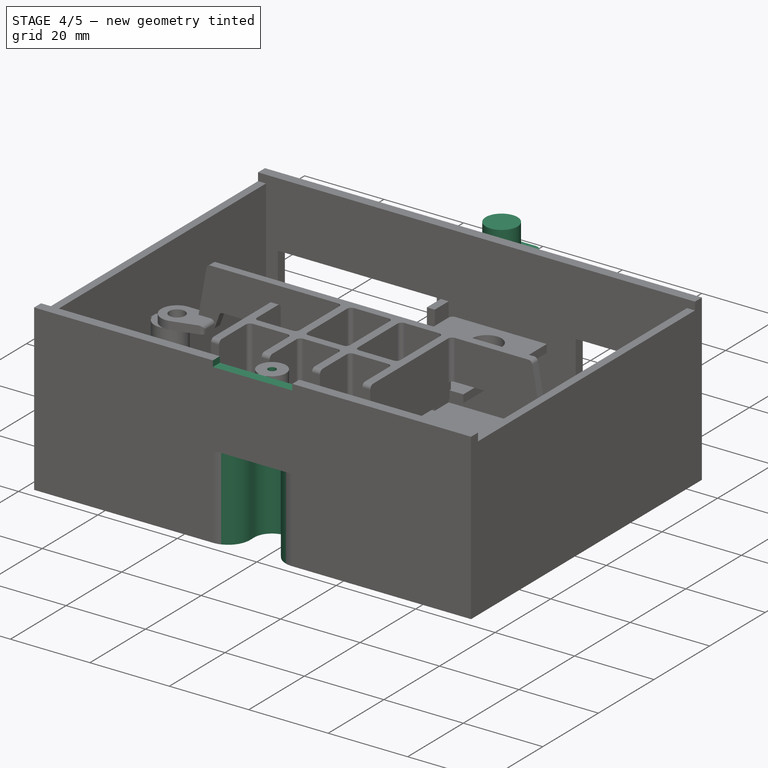
[diagram: stage 4 of 5 — iso view after this stage's code; geometry added in this stage tinted green]
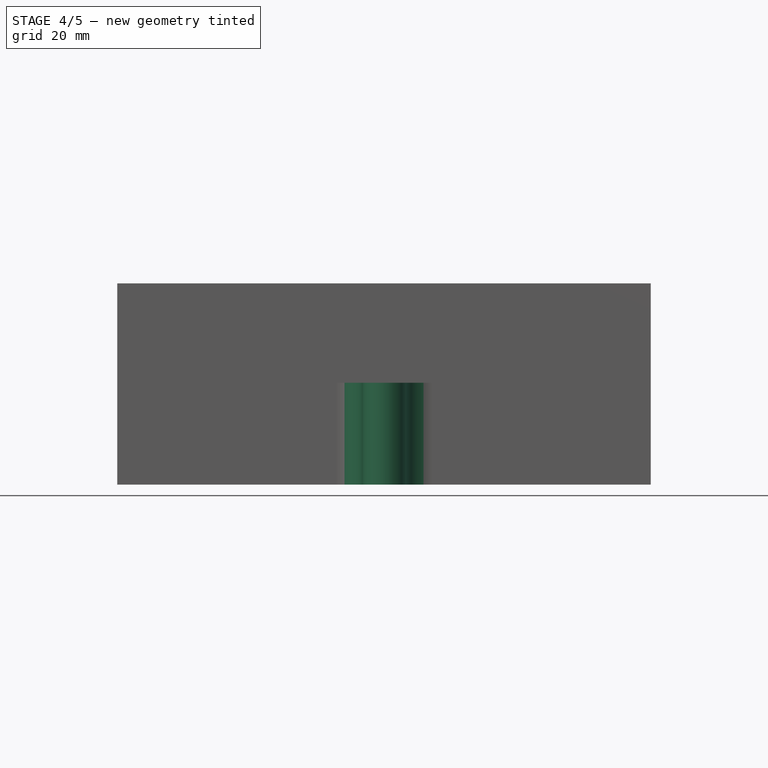
[diagram: stage 4 of 5 — front view after this stage's code; geometry added in this stage tinted green]
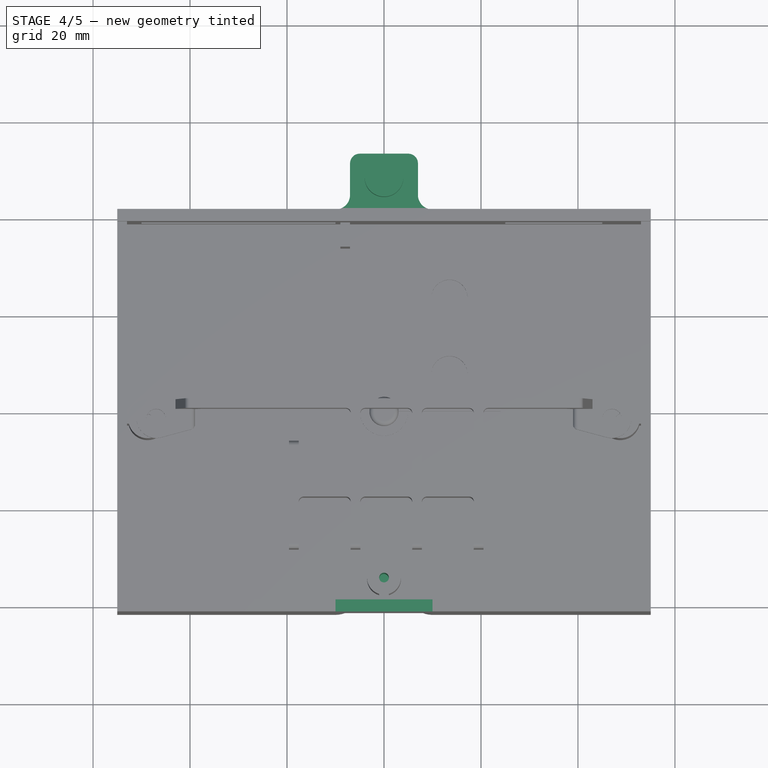
[diagram: stage 4 of 5 — top view after this stage's code; geometry added in this stage tinted green]
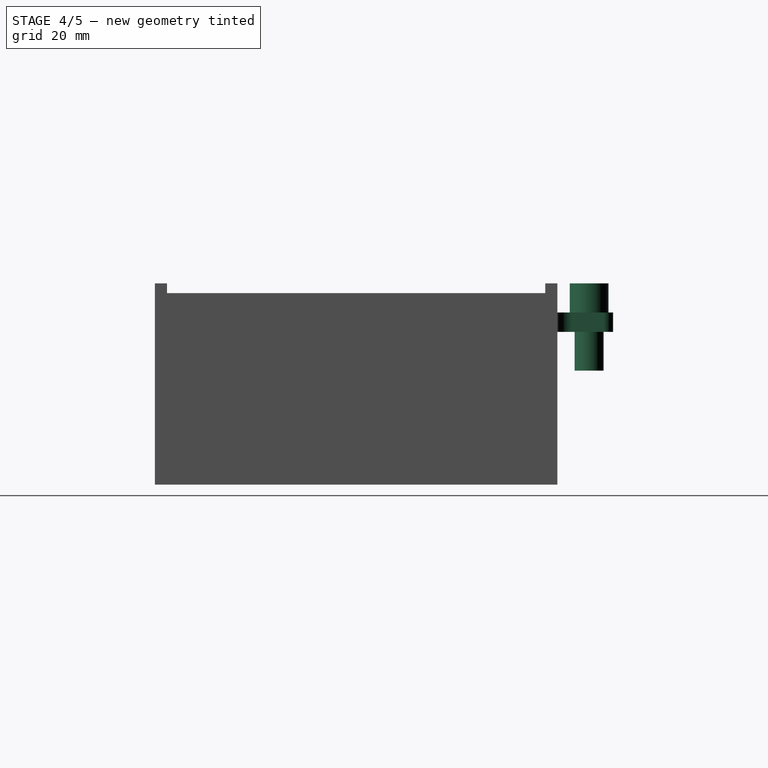
[diagram: stage 4 of 5 — right view after this stage's code; geometry added in this stage tinted green]
FEATURE [Sketcher::SketchObject] Sketch012
  ArcFitTolerance = 1e-06
  AttachmentSupport = -> [Pad007]
  ExternalGeometry = -> [Sketch005]
  ExternalTypes = [0]
  FullyConstrained = true
  MakeInternals = false
  MapMode = 5
  Placement = pos=(0,0,14.5) rot=(0,0,1;0rad)
  _ExternalGeoVersion = 0
FEATURE [PartDesign::Pocket] Pocket003
  BaseFeature = -> Pad007
  Direction = (0,0,-1)
  Length = 15
  Length2 = 5
  Profile = -> Sketch012
  ReferenceAxis = -> Sketch012 [N_Axis]
  Refine = true
  SideType = 0
  Suppressed = false
  Type = 0
  Type2 = 0
FEATURE [Sketcher::SketchObject] Sketch013
  ArcFitTolerance = 1e-06
  AttachmentSupport = -> [Pocket003]
  ExternalGeometry = -> [Pocket003]
  ExternalTypes = [0,0]
  FullyConstrained = true
  MakeInternals = false
  MapMode = 5
  Placement = pos=(0,0,16.5) rot=(0,0,1;0rad)
  _ExternalGeoVersion = 0
  sketch-geometry (4):
    g0: LineSegment StartX=-10 StartY=-39 StartZ=0 EndX=-10 EndY=-41.5 EndZ=0
    g1: LineSegment StartX=-10 StartY=-41.5 StartZ=0 EndX=10 EndY=-41.5 EndZ=0
    g2: LineSegment StartX=10 StartY=-41.5 StartZ=0 EndX=10 EndY=-39 EndZ=0
    g3: LineSegment StartX=10 StartY=-39 StartZ=0 EndX=-10 EndY=-39 EndZ=0
  constraints (11):
    c: Coincident(g0,g1)
    c: Coincident(g1,g2)
    c: Coincident(g2,g3)
    c: Coincident(g3,g0)
    c: Vertical(g0)
    c: Vertical(g2)
    c: Horizontal(g1)
    c: Distance(g0,g2) = 20
    c: PointOnObject(g1,g-3)
    c: PointOnObject(g2,g-4)
    c: Symmetric(g0,g2,g-2)
FEATURE [PartDesign::Pocket] Pocket004
  BaseFeature = -> Pocket003
  Direction = (0,0,-1)
  Length = 1.5
  Length2 = 5
  Profile = -> Sketch013
  ReferenceAxis = -> Sketch013 [N_Axis]
  Refine = true
  SideType = 0
  Suppressed = false
  Type = 0
  Type2 = 0
FEATURE [Sketcher::SketchObject] Sketch014
  ArcFitTolerance = 1e-06
  AttachmentOffset = pos=(0,0,-2) rot=(0,0,1;0rad)
  AttachmentSupport = -> [Pocket004]
  ExternalGeometry = -> [Pocket001]
  ExternalTypes = [2,0,0]
  FullyConstrained = true
  MakeInternals = false
  MapMode = 5
  Placement = pos=(0,0,-4) rot=(0,0,1;0rad)
  _ExternalGeoVersion = 0
  sketch-geometry (6):
    g0: ArcOfCircle CenterX=-10 CenterY=-36 CenterZ=0 NormalX=0 NormalY=0 NormalZ=1 AngleXU=0 Radius=5.5 StartAngle=4.71239 EndAngle=6.28319
    g1: ArcOfCircle CenterX=10 CenterY=-36 CenterZ=0 NormalX=0 NormalY=0 NormalZ=1 AngleXU=0 Radius=5.5 StartAngle=3.14159 EndAngle=4.71239
    g2: LineSegment StartX=-4.5 StartY=-36 StartZ=0 EndX=-4.5 EndY=-34.5 EndZ=0
    g3: LineSegment StartX=4.5 StartY=-36 StartZ=0 EndX=4.5 EndY=-34.5 EndZ=0
    g4: LineSegment StartX=-10 StartY=-41.5 StartZ=0 EndX=10 EndY=-41.5 EndZ=0
    g5: ArcOfCircle CenterX=0 CenterY=-34.5 CenterZ=0 NormalX=0 NormalY=0 NormalZ=1 AngleXU=0 Radius=4.5 StartAngle=3e-16 EndAngle=3.14159
  constraints (13):
    c: Tangent(g4,g1) = -1.5708
    c: Tangent(g3,g5,g5) = -1.5708
    c: Coincident(g3,g5)
    c: Coincident(g0,g-17)
    c: Vertical(g2)
    c: Coincident(g5,g2)
    c: Coincident(g5,g-29)
    c: Vertical(g3)
    c: Tangent(g4,g-9)
    c: Coincident(g1,g-21)
    c: Tangent(g1,g3) = 1.5708
    c: Tangent(g2,g0) = -1.5708
    c: Tangent(g4,g0) = -1.5708
FEATURE [PartDesign::Pocket] Pocket005
  BaseFeature = -> Pocket004
  Direction = (0,0,-1)
  Length = 5
  Length2 = 5
  Profile = -> Sketch014
  ReferenceAxis = -> Sketch014 [N_Axis]
  Refine = true
  SideType = 0
  Suppressed = false
  Type = 1
  Type2 = 0
FEATURE [Sketcher::SketchObject] Sketch016
  ArcFitTolerance = 1e-06
  ExternalGeometry = -> [Sketch005]
  ExternalTypes = [0]
  FullyConstrained = true
  MakeInternals = false
  MapMode = 5
  Placement = pos=(0,0,16.5) rot=(0,0,1;0rad)
  _ExternalGeoVersion = 0
  sketch-geometry (1):
    g0: Circle CenterX=0 CenterY=48.05 CenterZ=0 NormalX=0 NormalY=0 NormalZ=1 AngleXU=0 Radius=3
  constraints (2):
    c: Diameter(g0) = 6
    c: Coincident(g0,g-3)
FEATURE [PartDesign::Pad] Pad009
  BaseFeature = -> Pocket005
  Direction = (0,0,1)
  Length = 18
  Length2 = 10
  Profile = -> Sketch016
  ReferenceAxis = -> Sketch016 [N_Axis]
  Refine = true
  Reversed = true
  SideType = 0
  Suppressed = false
  Type = 0
  Type2 = 0
FEATURE [Sketcher::SketchObject] Sketch017
  ArcFitTolerance = 1e-06
  AttachmentSupport = -> [Pad009]
  ExternalGeometry = -> [Pad009]
  ExternalTypes = [0]
  FullyConstrained = true
  MakeInternals = false
  MapMode = 5
  Placement = pos=(0,0,16.5) rot=(0,0,1;0rad)
  _ExternalGeoVersion = 0
  sketch-geometry (1):
    g0: Circle CenterX=0 CenterY=48.05 CenterZ=0 NormalX=0 NormalY=0 NormalZ=1 AngleXU=0 Radius=4
  constraints (2):
    c: Diameter(g0) = 8
    c: Coincident(g0,g-3)
FEATURE [PartDesign::Pad] Pad010
  BaseFeature = -> Pad009
  Direction = (0,0,1)
  Length = 6
  Length2 = 10
  Profile = -> Sketch017
  ReferenceAxis = -> Sketch017 [N_Axis]
  Refine = true
  Reversed = true
  SideType = 0
  Suppressed = false
  Type = 0
  Type2 = 0
FEATURE [Sketcher::SketchObject] Sketch018
  ArcFitTolerance = 1e-06
  AttachmentSupport = -> [Pad010]
  ExternalGeometry = -> [Pad010]
  ExternalTypes = [0,0]
  FullyConstrained = false
  MakeInternals = false
  MapMode = 5
  Placement = pos=(0,0,10.5) rot=(1,0,0;3.14159rad)
  _ExternalGeoVersion = 0
  sketch-geometry (12):
    g0: LineSegment StartX=-5 StartY=-53 StartZ=0 EndX=5 EndY=-53 EndZ=0
    g1: LineSegment StartX=-7 StartY=-51 StartZ=0 EndX=-7 EndY=-44.5 EndZ=0
    g2: LineSegment StartX=7 StartY=-51 StartZ=0 EndX=7 EndY=-44.5 EndZ=0
    g3: ArcOfCircle CenterX=10 CenterY=-44.5 CenterZ=0 NormalX=0 NormalY=0 NormalZ=1 AngleXU=0 Radius=3 StartAngle=1.5708 EndAngle=3.14159
    g4: GeomPoint [constr] X=7 Y=-41.5 Z=0
    g5: ArcOfCircle CenterX=-10 CenterY=-44.5 CenterZ=0 NormalX=0 NormalY=0 NormalZ=1 AngleXU=0 Radius=3 StartAngle=0 EndAngle=1.5708
    g6: GeomPoint [constr] X=-7 Y=-41.5 Z=0
    g7: ArcOfCircle CenterX=-5 CenterY=-51 CenterZ=0 NormalX=0 NormalY=0 NormalZ=1 AngleXU=0 Radius=2 StartAngle=3.14159 EndAngle=4.71239
    g8: GeomPoint [constr] X=-7 Y=-53 Z=0
    g9: ArcOfCircle CenterX=5 CenterY=-51 CenterZ=0 NormalX=0 NormalY=0 NormalZ=1 AngleXU=0 Radius=2 StartAngle=4.71239 EndAngle=6.28319
    g10: GeomPoint [constr] X=7 Y=-53 Z=0
    g11: LineSegment StartX=-10 StartY=-41.5 StartZ=0 EndX=10 EndY=-41.5 EndZ=0
  constraints (26):
    c: Distance(g10,g-4) = 11.5
    c: Symmetric(g8,g10,g-2)
    c: PointOnObject(g6,g-4)
    c: Vertical(g1)
    c: PointOnObject(g4,g-4)
    c: Vertical(g2)
    c: PointOnObject(g4,g2)
    c: Tangent(g2,g3) = 1.5708
    c: PointOnObject(g6,g1)
    c: Tangent(g1,g5) = -1.5708
    c: Equal(g3,g5)
    c: Radius(g5) = 3
    c: PointOnObject(g8,g0)
    c: PointOnObject(g8,g1)
    c: Tangent(g0,g7) = -1.5708
    c: Tangent(g1,g7) = 1.5708
    c: PointOnObject(g10,g0)
    c: PointOnObject(g10,g2)
    c: Tangent(g0,g9) = -1.5708
    c: Tangent(g2,g9) = -1.5708
    c: Equal(g7,g9)
    c: Radius(g7) = 2
    c: DistanceX(g1,g2) = 14
    c: Coincident(g11,g5)
    c: Coincident(g11,g3)
    c: Horizontal(g11)
FEATURE [PartDesign::Pad] Pad011
  BaseFeature = -> Pad010
  Direction = (0,0,-1)
  Length = 4
  Length2 = 10
  Profile = -> Sketch018
  ReferenceAxis = -> Sketch018 [N_Axis]
  Refine = true
  SideType = 0
  Suppressed = false
  Type = 0
  Type2 = 0
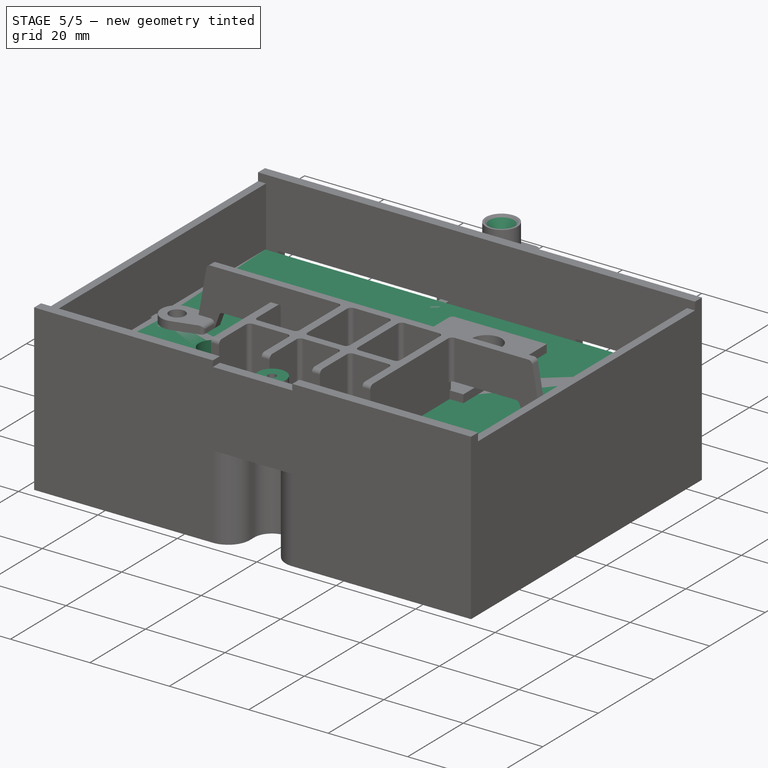
[diagram: stage 5 of 5 — iso view after this stage's code; geometry added in this stage tinted green]
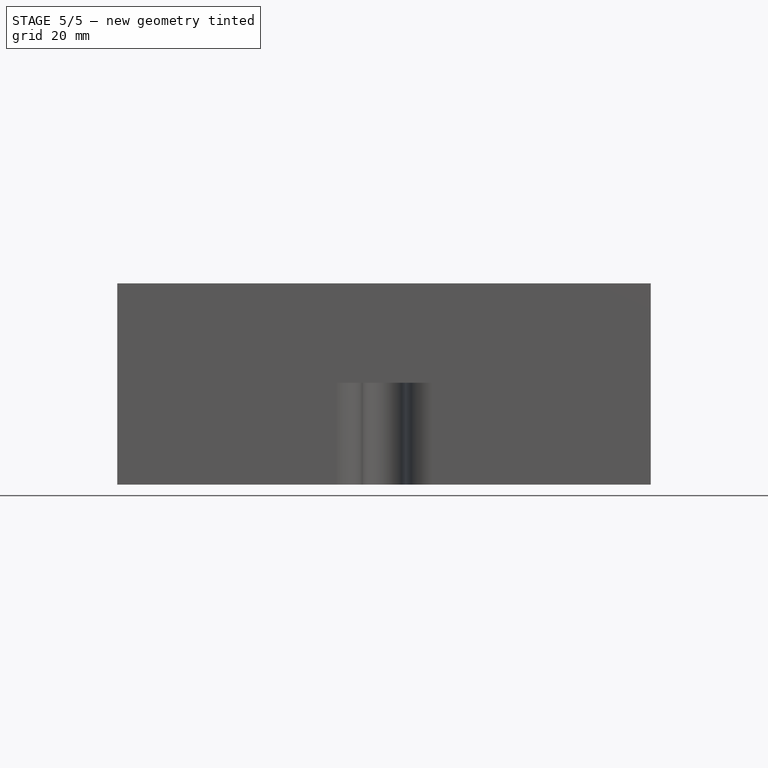
[diagram: stage 5 of 5 — front view after this stage's code; geometry added in this stage tinted green]
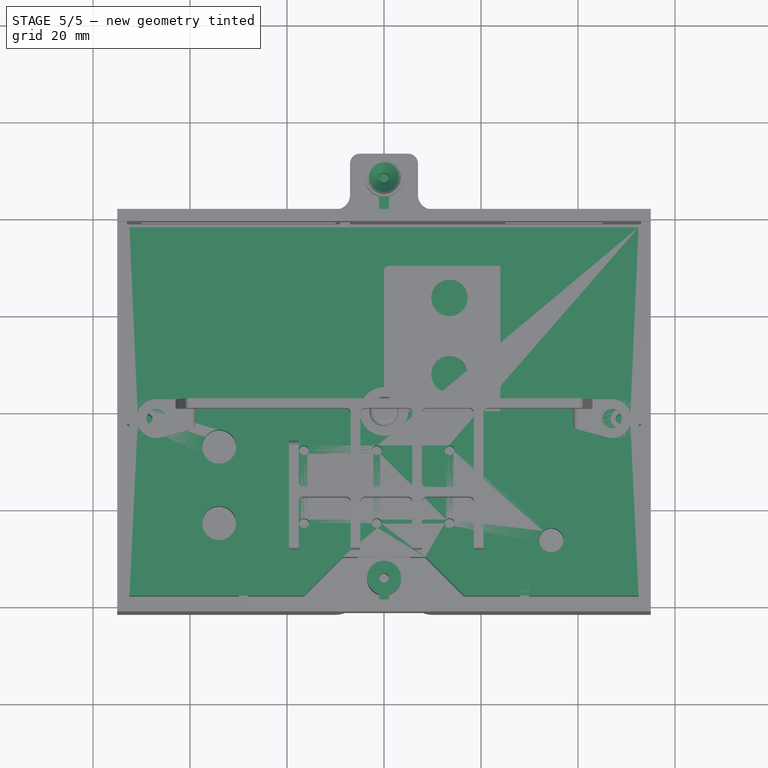
[diagram: stage 5 of 5 — top view after this stage's code; geometry added in this stage tinted green]
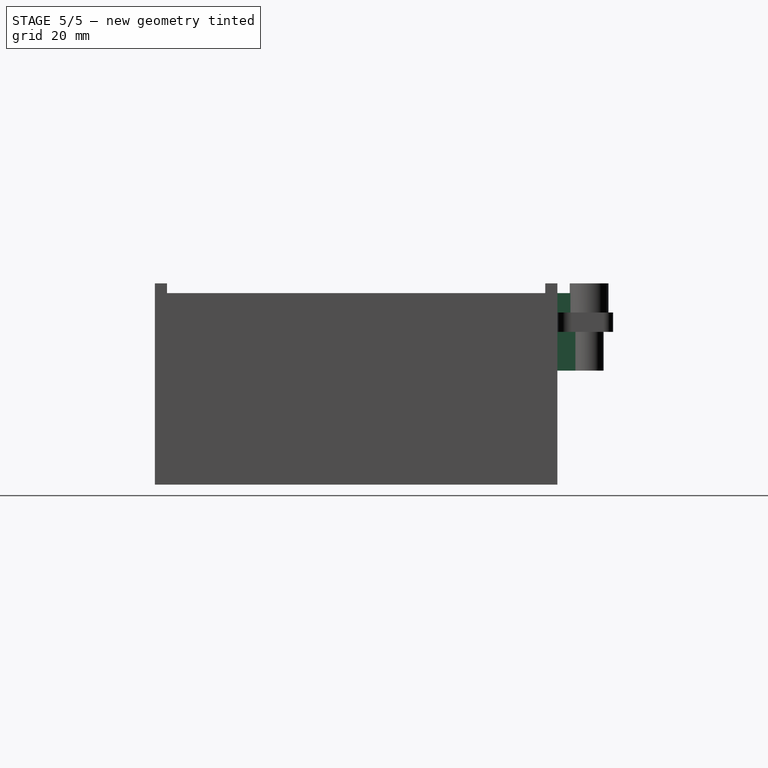
[diagram: stage 5 of 5 — right view after this stage's code; geometry added in this stage tinted green]
FEATURE [Sketcher::SketchObject] Sketch  label="landmarks"
  ArcFitTolerance = 1e-06
  ExternalTypes = [0]
  FullyConstrained = true
  MakeInternals = false
  MapMode = 5
  _ExternalGeoVersion = 0
  expr: Constraints[13] = VarSet.holeSpacing
  sketch-geometry (20):
    g0: LineSegment StartX=52.5 StartY=-38 StartZ=0 EndX=52.5 EndY=38 EndZ=0
    g1: LineSegment StartX=52.5 StartY=38 StartZ=0 EndX=-52.5 EndY=38 EndZ=0
    g2: LineSegment StartX=-52.5 StartY=38 StartZ=0 EndX=-52.5 EndY=-38 EndZ=0
    g3: GeomPoint [constr] X=0 Y=0 Z=0
    g4: Circle CenterX=-48.75 CenterY=-1.5 CenterZ=0 NormalX=0 NormalY=0 NormalZ=1 AngleXU=0 Radius=2
    g5: Circle CenterX=48.75 CenterY=-1.5 CenterZ=0 NormalX=0 NormalY=0 NormalZ=1 AngleXU=0 Radius=2
    g6: LineSegment StartX=-52.5 StartY=-38 StartZ=0 EndX=-16.5 EndY=-38 EndZ=0
    g7: LineSegment StartX=-16.5 StartY=-38 StartZ=0 EndX=-8.5 EndY=-30 EndZ=0
    g8: LineSegment StartX=-8.5 StartY=-30 StartZ=0 EndX=8.5 EndY=-30 EndZ=0
    g9: LineSegment StartX=8.5 StartY=-30 StartZ=0 EndX=16.5 EndY=-38 EndZ=0
    g10: LineSegment StartX=16.5 StartY=-38 StartZ=0 EndX=52.5 EndY=-38 EndZ=0
    g11: Circle CenterX=34 CenterY=-23 CenterZ=0 NormalX=0 NormalY=0 NormalZ=1 AngleXU=0 Radius=3.5
    g12: Circle CenterX=34 CenterY=-7.25 CenterZ=0 NormalX=0 NormalY=0 NormalZ=1 AngleXU=0 Radius=3.5
    g13: Circle CenterX=-13.5 CenterY=-23 CenterZ=0 NormalX=0 NormalY=0 NormalZ=1 AngleXU=0 Radius=1
    g14: Circle CenterX=1.5 CenterY=-23 CenterZ=0 NormalX=0 NormalY=0 NormalZ=1 AngleXU=0 Radius=1
    g15: Circle CenterX=16.5 CenterY=-23 CenterZ=0 NormalX=0 NormalY=0 NormalZ=1 AngleXU=0 Radius=1
    g16: Circle CenterX=-13.5 CenterY=-8 CenterZ=0 NormalX=0 NormalY=0 NormalZ=1 AngleXU=0 Radius=1
    g17: Circle CenterX=1.5 CenterY=-8 CenterZ=0 NormalX=0 NormalY=0 NormalZ=1 AngleXU=0 Radius=1
    g18: Circle CenterX=16.5 CenterY=-8 CenterZ=0 NormalX=0 NormalY=0 NormalZ=1 AngleXU=0 Radius=1
    g19: Circle CenterX=-34.5 CenterY=-26.5 CenterZ=0 NormalX=0 NormalY=0 NormalZ=1 AngleXU=0 Radius=2.5
  constraints (54):
    c: Coincident(g0,g1)
    c: Coincident(g1,g2)
    c: Horizontal(g1)
    c: Vertical(g0)
    c: Vertical(g2)
    c: Symmetric(g1,g2,g3)
    c: Distance(g0,g2) = 105
    c: Distance(g2,g1) = 76
    c: Coincident(g3,g-1)
    c: Diameter(g4) = 4
    c: Diameter(g5) = 4
    c: Symmetric(g4,g5,g-2)
    c: Distance(g5,g1) = 39.5
    c: DistanceX(g4,g5) = 97.5
    c: Coincident(g2,g6)
    c: Horizontal(g6)
    c: Coincident(g6,g7)
    c: Coincident(g7,g8)
    c: Coincident(g8,g9)
    c: Coincident(g9,g10)
    c: Coincident(g10,g0)
    c: Symmetric(g7,g8,g-2)
    c: Angle(g7,g8) = 2.35619
    c: Equal(g7,g9)
    c: Tangent(g6,g10)
    c: DistanceX(g10,g10) = 36
    c: Distance(g10,g8) = 8
    c: Diameter(g11) = 7
    c: Diameter(g12) = 7
    c: Vertical(g12,g11)
    c: Distance(g11,g10) = 15
    c: DistanceY(g11,g12) = 15.75
    c: Distance(g11,g0) = 18.5
    c: Horizontal(g13,g14)
    c: Horizontal(g14,g15)
    c: Diameter(g18) = 2
    c: Horizontal(g16,g17)
    c: Horizontal(g17,g18)
    c: Vertical(g18,g15)
    c: Vertical(g14,g17)
    c: Vertical(g16,g13)
    c: Distance(g18,g0) = 36
    c: Equal(g18,g15)
    c: Equal(g18,g17)
    c: Equal(g17,g14)
    c: Equal(g17,g16)
    c: Equal(g16,g13)
    c: Distance(g13,g6) = 15
    c: DistanceY(g13,g16) = 15
    c: DistanceX(g16,g17) = 15
    c: DistanceX(g17,g18) = 15
    c: Diameter(g19) = 5
    c: Distance(g19,g6) = 11.5
    c: Distance(g19,g2) = 18
FEATURE [App::Point] Origin001
  Role = Origin
FEATURE [PartDesign::SubShapeBinder] Binder
  BindCopyOnChange = 0
  BindMode = 0
  ClaimChildren = false
  Context = -> Body [Pad.Binder.]
  Fuse = false
  MakeFace = true
  OffsetFill = false
  OffsetIntersection = false
  OffsetJoinType = 0
  OffsetOpenResult = false
  PartialLoad = false
  Placement = pos=(0,0,0) rot=(0,1,0;3.14159rad)
  Refine = true
  Relative = true
  Support = -> [Sketch]
  _Version = 2
FEATURE [PartDesign::Pad] Pad
  Direction = (1e-16,0,-1)
  Length = 10
  Length2 = 10
  Placement = pos=(0,0,0) rot=(0,1,0;3.14159rad)
  Profile = -> Binder
  Refine = true
  SideType = 0
  Suppressed = false
  Type = 0
  Type2 = 0
FEATURE [Sketcher::SketchObject] Sketch019
  ArcFitTolerance = 1e-06
  AttachmentSupport = -> [Pad011]
  ExternalGeometry = -> [Pad011]
  ExternalTypes = [0,0]
  FullyConstrained = false
  MakeInternals = false
  MapMode = 5
  Placement = pos=(0,0,-1.5) rot=(1,0,0;3.14159rad)
  _ExternalGeoVersion = 0
  sketch-geometry (4):
    g0: LineSegment StartX=-1 StartY=-41.5 StartZ=0 EndX=-1 EndY=-46.5379 EndZ=0
    g1: LineSegment StartX=-1 StartY=-46.5379 StartZ=0 EndX=1 EndY=-46.5379 EndZ=0
    g2: LineSegment StartX=1 StartY=-46.5379 StartZ=0 EndX=1 EndY=-41.5 EndZ=0
    g3: LineSegment StartX=1 StartY=-41.5 StartZ=0 EndX=-1 EndY=-41.5 EndZ=0
  constraints (10):
    c: Coincident(g0,g1)
    c: Coincident(g1,g2)
    c: Coincident(g2,g3)
    c: Coincident(g3,g0)
    c: Vertical(g0)
    c: Vertical(g2)
    c: Horizontal(g1)
    c: PointOnObject(g0,g-4)
    c: Symmetric(g0,g2,g-2)
    c: Distance(g2,g0) = 2
FEATURE [PartDesign::Pad] Pad012
  BaseFeature = -> Pad011
  Direction = (0,0,-1)
  Length = 16
  Length2 = 10
  Profile = -> Sketch019
  ReferenceAxis = -> Sketch019 [N_Axis]
  Refine = true
  Reversed = true
  SideType = 0
  Suppressed = false
  Type = 0
  Type2 = 0
FEATURE [Sketcher::SketchObject] Sketch020
  ArcFitTolerance = 1e-06
  AttachmentSupport = -> [Pad012]
  ExternalGeometry = -> [Pad012]
  ExternalTypes = [0]
  FullyConstrained = true
  MakeInternals = false
  MapMode = 5
  Placement = pos=(0,0,16.5) rot=(0,0,1;0rad)
  _ExternalGeoVersion = 0
  sketch-geometry (1):
    g0: Circle CenterX=0 CenterY=48.05 CenterZ=0 NormalX=0 NormalY=0 NormalZ=1 AngleXU=0 Radius=1
  constraints (2):
    c: Diameter(g0) = 2
    c: Coincident(g0,g-3)
FEATURE [PartDesign::Pocket] Pocket006
  BaseFeature = -> Pad012
  Direction = (0,0,-1)
  Length = 15
  Length2 = 5
  Profile = -> Sketch020
  ReferenceAxis = -> Sketch020 [N_Axis]
  Refine = true
  SideType = 0
  Suppressed = false
  Type = 0
  Type2 = 0
FEATURE [Sketcher::SketchObject] Sketch021
  ArcFitTolerance = 1e-06
  AttachmentSupport = -> [Pocket006]
  ExternalGeometry = -> [Pocket006]
  ExternalTypes = [0,0,0]
  FullyConstrained = true
  MakeInternals = false
  MapMode = 5
  Placement = pos=(0,0,-2) rot=(0,0,1;0rad)
  _ExternalGeoVersion = 0
FEATURE [PartDesign::Pocket] Pocket007
  BaseFeature = -> Pocket006
  Direction = (0,0,-1)
  Length = 13
  Length2 = 5
  Profile = -> Sketch021
  ReferenceAxis = -> Sketch021 [N_Axis]
  Refine = true
  SideType = 0
  Suppressed = false
  Type = 0
  Type2 = 0
FEATURE [Sketcher::SketchObject] Sketch022
  ArcFitTolerance = 1e-06
  AttachmentSupport = -> [Pocket007]
  ExternalTypes = [0]
  FullyConstrained = true
  MakeInternals = false
  MapMode = 5
  Placement = pos=(0,0,-23) rot=(0,0,1;0rad)
  _ExternalGeoVersion = 0
  sketch-geometry (4):
    g0: Circle CenterX=-20 CenterY=15 CenterZ=0 NormalX=0 NormalY=0 NormalZ=1 AngleXU=0 Radius=2.5
    g1: Circle CenterX=20 CenterY=15 CenterZ=0 NormalX=0 NormalY=0 NormalZ=1 AngleXU=0 Radius=2.5
    g2: Circle CenterX=-20 CenterY=-15 CenterZ=0 NormalX=0 NormalY=0 NormalZ=1 AngleXU=0 Radius=2.5
    g3: Circle CenterX=20 CenterY=-15 CenterZ=0 NormalX=0 NormalY=0 NormalZ=1 AngleXU=0 Radius=2.5
  constraints (10):
    c: Diameter(g0) = 5
    c: Diameter(g1) = 5
    c: Diameter(g2) = 5
    c: Diameter(g3) = 5
    c: Symmetric(g0,g3,g-1)
    c: Symmetric(g1,g2,g-1)
    c: DistanceX(g0,g-1) = 20
    c: Distance(g0,g-1) = 15
    c: Vertical(g3,g1)
    c: Horizontal(g2,g3)
FEATURE [PartDesign::Pocket] Pocket008
  BaseFeature = -> Pocket007
  Direction = (0,0,-1)
  Length = 5
  Length2 = 5
  Profile = -> Sketch022
  ReferenceAxis = -> Sketch022 [N_Axis]
  Refine = true
  SideType = 0
  Suppressed = false
  Type = 1
  Type2 = 0
FEATURE [Sketcher::SketchObject] Sketch023
  ArcFitTolerance = 1e-06
  AttachmentSupport = -> [Pocket008]
  ExternalGeometry = -> [Pocket008]
  ExternalTypes = [0]
  FullyConstrained = false
  MakeInternals = false
  MapMode = 5
  Placement = pos=(0,0,16.5) rot=(0,0,1;0rad)
  _ExternalGeoVersion = 1
  sketch-geometry (1):
    g0: Circle CenterX=0 CenterY=48.05 CenterZ=0 NormalX=0 NormalY=0 NormalZ=1 AngleXU=0 Radius=3.5
FEATURE [PartDesign::Pocket] Pocket009
  BaseFeature = -> Pocket008
  Direction = (0,0,-1)
  Length = 3
  Length2 = 5
  Profile = -> Sketch023
  ReferenceAxis = -> Sketch023 [N_Axis]
  Refine = true
  SideType = 0
  Suppressed = false
  TaperAngle = -45
  Type = 0
  Type2 = 0
FEATURE [Sketcher::SketchObject] Sketch024
  ArcFitTolerance = 1e-06
  AttachmentSupport = -> [Pocket009]
  ExternalGeometry = -> [Pocket009]
  ExternalTypes = [0]
  FullyConstrained = true
  MakeInternals = false
  MapMode = 5
  Placement = pos=(0,0,14.5) rot=(0,0,1;0rad)
  _ExternalGeoVersion = 1
FEATURE [PartDesign::Pocket] Pocket010
  BaseFeature = -> Pocket009
  Direction = (0,0,-1)
  Length = 1.5
  Length2 = 5
  Profile = -> Sketch024
  ReferenceAxis = -> Sketch024 [N_Axis]
  Refine = true
  SideType = 0
  Suppressed = false
  Type = 0
  Type2 = 0
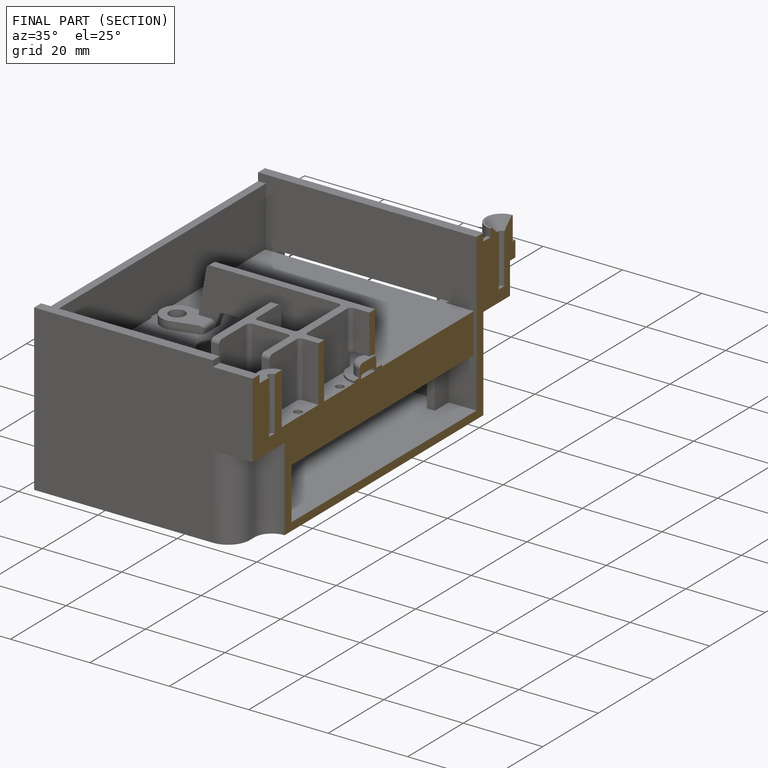
[diagram: finished part — half-section view (interior)]
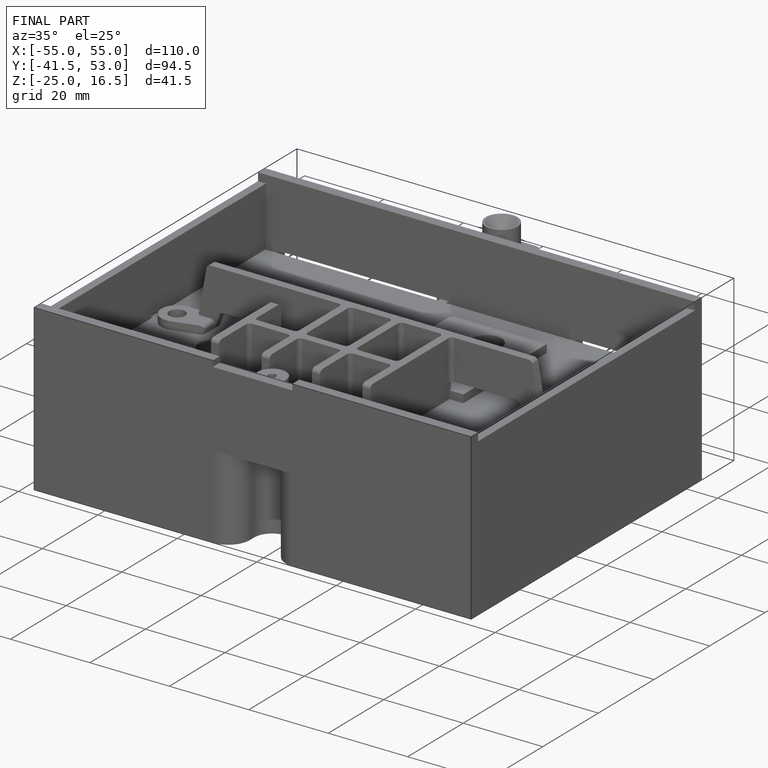
[diagram: finished part — iso view with bounding-box wireframe]
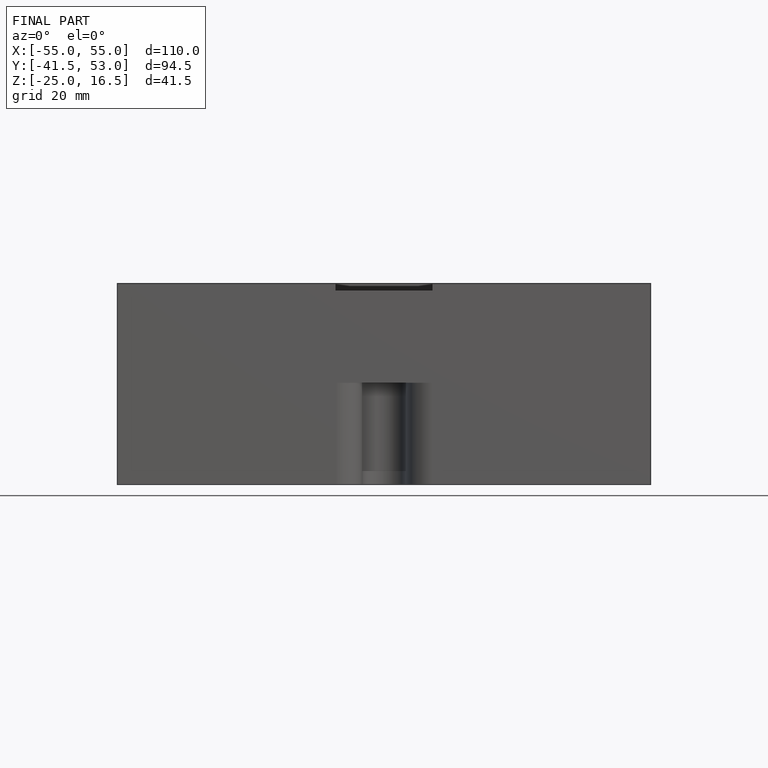
[diagram: finished part — front view with bounding-box wireframe]
